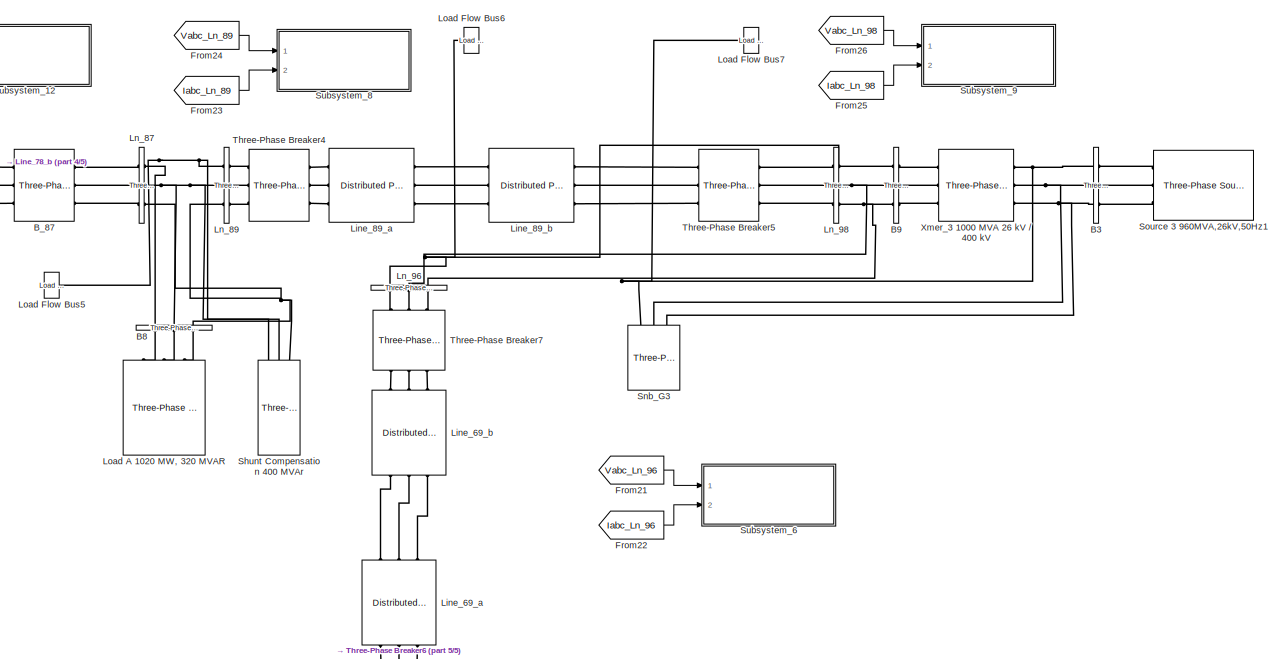
[diagram: root canvas - part 1/5, top right region]
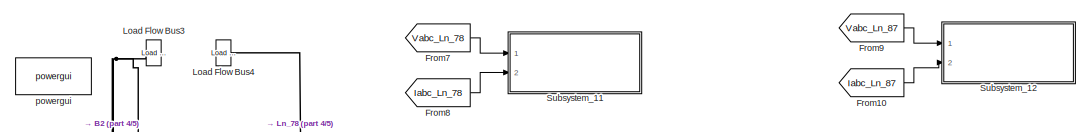
[diagram: root canvas - part 2/5, top center region]
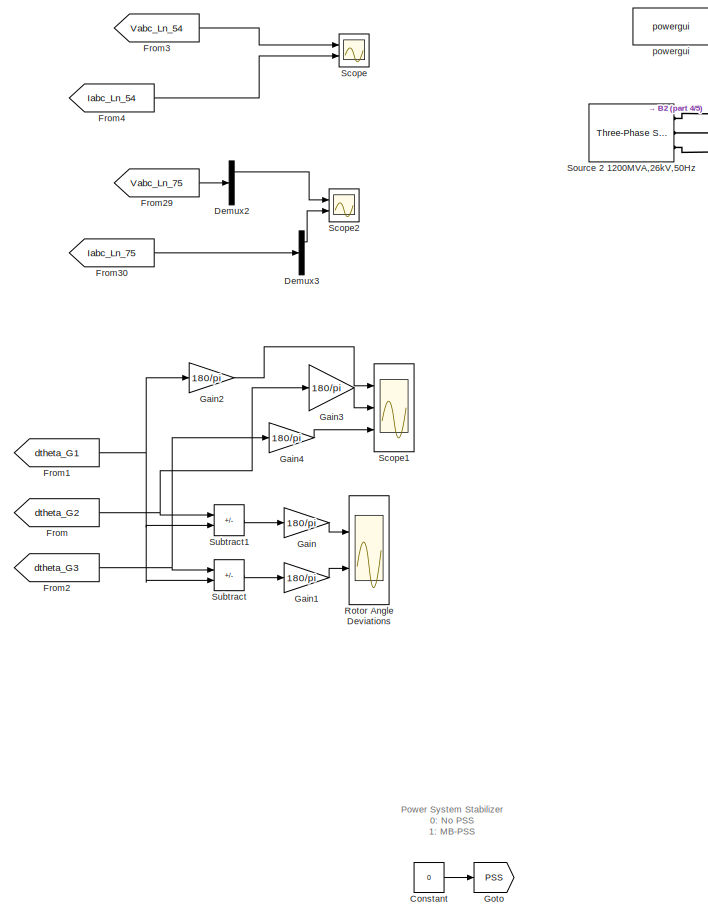
[diagram: root canvas - part 3/5, top left region]
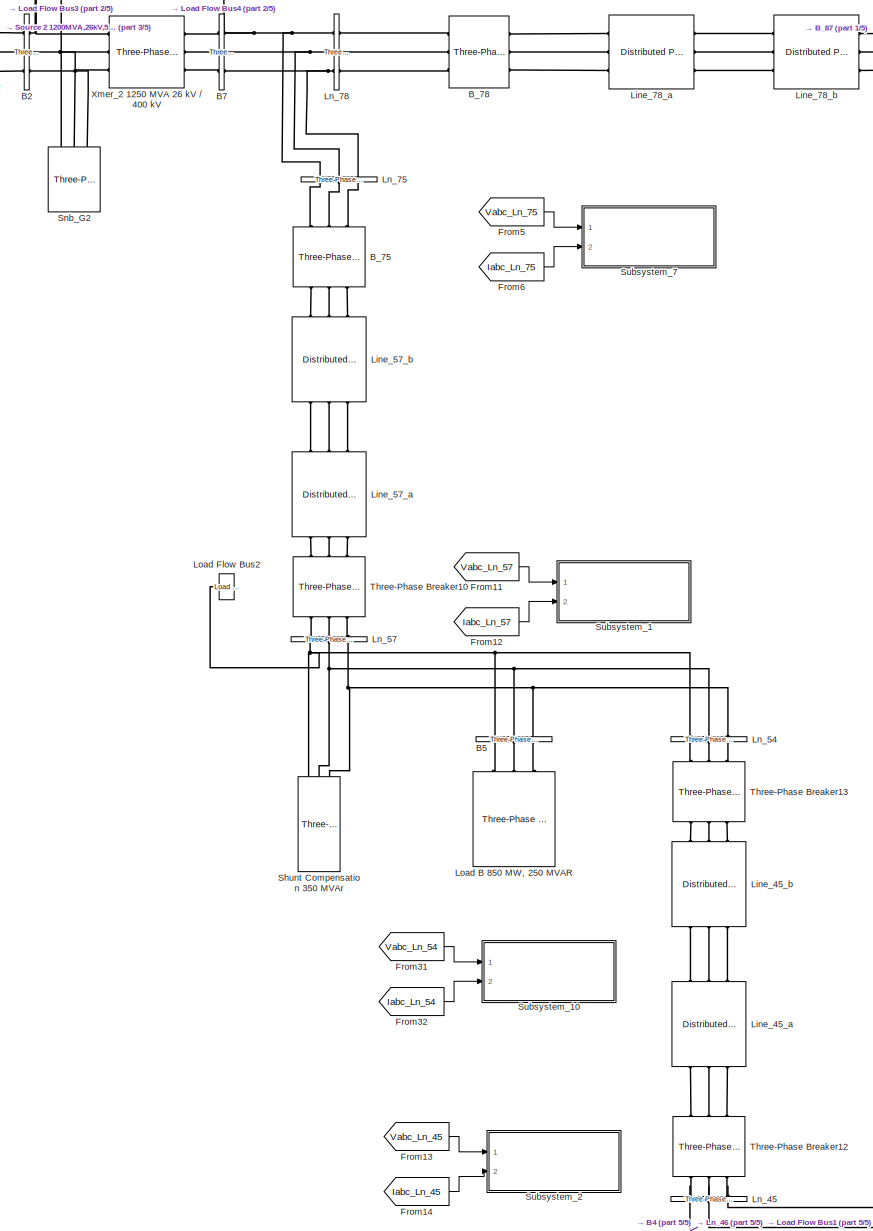
[diagram: root canvas - part 4/5, central region]
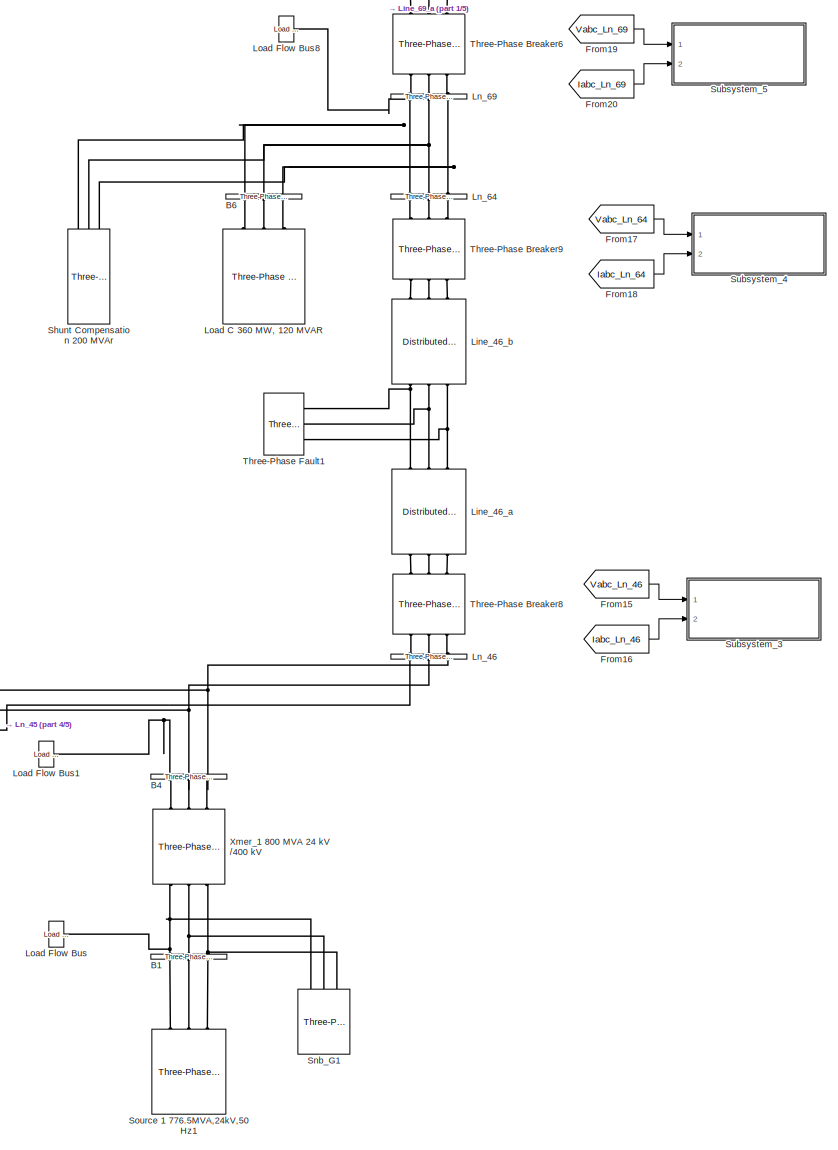
[diagram: root canvas - part 5/5, bottom right region]
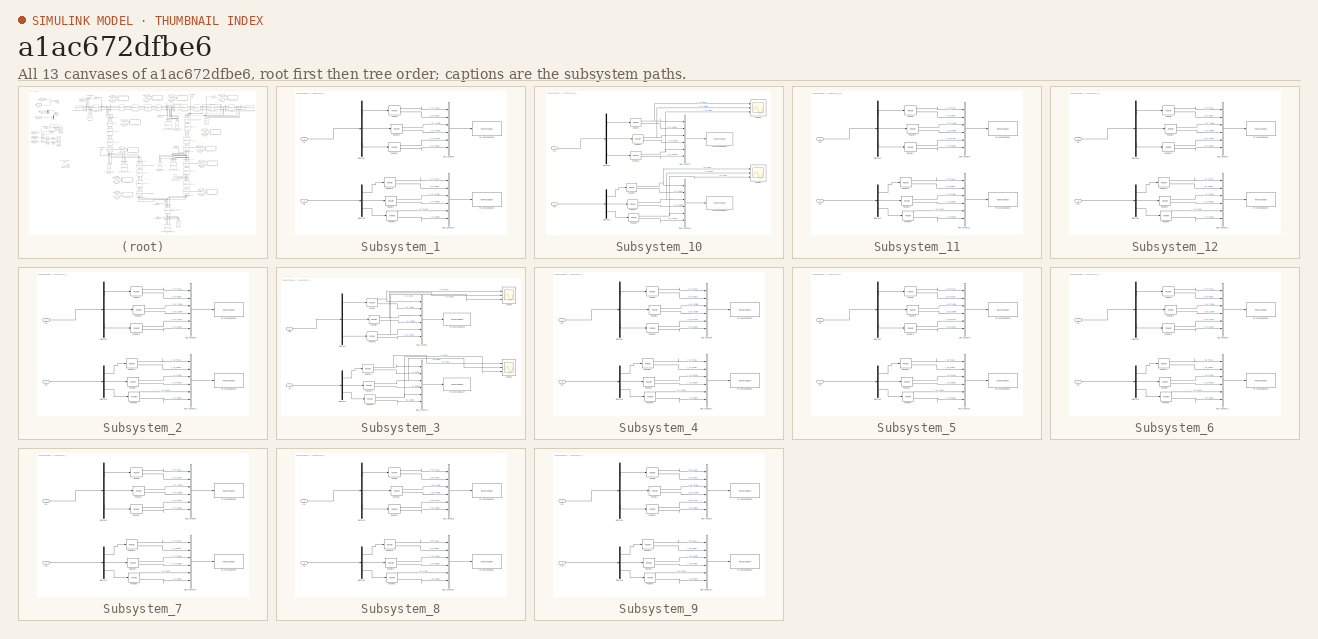
[diagram: thumbnail index - all 13 canvases of the model, root first then tree order]
MODEL slx_a1ac672dfbe6
KIND model
CONFIG AbsTol = auto
CONFIG EnableMultiTasking = off
CONFIG FixedStep = 5e-7
CONFIG MaxStep = auto
CONFIG MinStep = auto
CONFIG PreLoadFcn = tf=1e-3\nto=20e-3
CONFIG RelTol = 1e-3
CONFIG SampleTimeConstraint = Unconstrained
CONFIG SolverName = FixedStepDiscrete
CONFIG StartTime = 0.0
CONFIG StopTime = 1
WORKSPACE source: mxarray member
WORKSPACE tf = 0.001
WORKSPACE to = 0.02
BLOCK [Reference] B1  REF=spsThreePhaseVIMeasurementLib/Three-Phase
V-I Measurement
  NameLocation = right
  Ports = [0, 0, 0, 0, 0, 3, 3]
  SourceBlock = spsThreePhaseVIMeasurementLib/Three-Phase\nV-I Measurement
  SourceProductBaseCode = PS
  SourceType = Three-Phase VI Measurement
BLOCK [Reference] B2  REF=spsThreePhaseVIMeasurementLib/Three-Phase
V-I Measurement
  Ports = [0, 0, 0, 0, 0, 3, 3]
  SourceBlock = spsThreePhaseVIMeasurementLib/Three-Phase\nV-I Measurement
  SourceProductBaseCode = PS
  SourceType = Three-Phase VI Measurement
BLOCK [Reference] B3  REF=spsThreePhaseVIMeasurementLib/Three-Phase
V-I Measurement
  Ports = [0, 0, 0, 0, 0, 3, 3]
  SourceBlock = spsThreePhaseVIMeasurementLib/Three-Phase\nV-I Measurement
  SourceProductBaseCode = PS
  SourceType = Three-Phase VI Measurement
BLOCK [Reference] B4  REF=spsThreePhaseVIMeasurementLib/Three-Phase
V-I Measurement
  NameLocation = right
  Ports = [0, 0, 0, 0, 0, 3, 3]
  SourceBlock = spsThreePhaseVIMeasurementLib/Three-Phase\nV-I Measurement
  SourceProductBaseCode = PS
  SourceType = Three-Phase VI Measurement
BLOCK [Reference] B5  REF=spsThreePhaseVIMeasurementLib/Three-Phase
V-I Measurement
  NameLocation = left
  Ports = [0, 0, 0, 0, 0, 3, 3]
  SourceBlock = spsThreePhaseVIMeasurementLib/Three-Phase\nV-I Measurement
  SourceProductBaseCode = PS
  SourceType = Three-Phase VI Measurement
BLOCK [Reference] B6  REF=spsThreePhaseVIMeasurementLib/Three-Phase
V-I Measurement
  NameLocation = left
  Ports = [0, 0, 0, 0, 0, 3, 3]
  SourceBlock = spsThreePhaseVIMeasurementLib/Three-Phase\nV-I Measurement
  SourceProductBaseCode = PS
  SourceType = Three-Phase VI Measurement
BLOCK [Reference] B7  REF=spsThreePhaseVIMeasurementLib/Three-Phase
V-I Measurement
  Ports = [0, 0, 0, 0, 0, 3, 3]
  SourceBlock = spsThreePhaseVIMeasurementLib/Three-Phase\nV-I Measurement
  SourceProductBaseCode = PS
  SourceType = Three-Phase VI Measurement
BLOCK [Reference] B8  REF=spsThreePhaseVIMeasurementLib/Three-Phase
V-I Measurement
  NameLocation = left
  Ports = [0, 0, 0, 0, 0, 3, 3]
  SourceBlock = spsThreePhaseVIMeasurementLib/Three-Phase\nV-I Measurement
  SourceProductBaseCode = PS
  SourceType = Three-Phase VI Measurement
BLOCK [Reference] B9  REF=spsThreePhaseVIMeasurementLib/Three-Phase
V-I Measurement
  Ports = [0, 0, 0, 0, 0, 3, 3]
  SourceBlock = spsThreePhaseVIMeasurementLib/Three-Phase\nV-I Measurement
  SourceProductBaseCode = PS
  SourceType = Three-Phase VI Measurement
BLOCK [Reference] B_75  REF=spsThreePhaseBreakerLib/Three-Phase Breaker
  NameLocation = right
  Ports = [0, 0, 0, 0, 0, 3, 3]
  SourceBlock = spsThreePhaseBreakerLib/Three-Phase Breaker
  SourceProductBaseCode = PS
  SourceType = Three-Phase Breaker
BLOCK [Reference] B_78  REF=spsThreePhaseBreakerLib/Three-Phase Breaker
  Ports = [0, 0, 0, 0, 0, 3, 3]
  SourceBlock = spsThreePhaseBreakerLib/Three-Phase Breaker
  SourceProductBaseCode = PS
  SourceType = Three-Phase Breaker
BLOCK [Reference] B_87  REF=spsThreePhaseBreakerLib/Three-Phase Breaker
  Ports = [0, 0, 0, 0, 0, 3, 3]
  SourceBlock = spsThreePhaseBreakerLib/Three-Phase Breaker
  SourceProductBaseCode = PS
  SourceType = Three-Phase Breaker
BLOCK [Constant] Constant
  Value = 0
BLOCK [Demux] Demux2
  Outputs = 3
  Ports = [1, 3]
BLOCK [Demux] Demux3
  Outputs = 3
  Ports = [1, 3]
BLOCK [From] From
  Commented = on
  GotoTag = dtheta_G2
BLOCK [From] From1
  Commented = on
  GotoTag = dtheta_G1
BLOCK [From] From10
  GotoTag = Iabc_Ln_87
  TagVisibility = global
BLOCK [From] From11
  GotoTag = Vabc_Ln_57
  TagVisibility = global
BLOCK [From] From12
  GotoTag = Iabc_Ln_57
  TagVisibility = global
BLOCK [From] From13
  GotoTag = Vabc_Ln_45
  TagVisibility = global
BLOCK [From] From14
  GotoTag = Iabc_Ln_45
  TagVisibility = global
BLOCK [From] From15
  GotoTag = Vabc_Ln_46
  TagVisibility = global
BLOCK [From] From16
  GotoTag = Iabc_Ln_46
  TagVisibility = global
BLOCK [From] From17
  GotoTag = Vabc_Ln_64
  TagVisibility = global
BLOCK [From] From18
  GotoTag = Iabc_Ln_64
  TagVisibility = global
BLOCK [From] From19
  GotoTag = Vabc_Ln_69
  TagVisibility = global
BLOCK [From] From2
  Commented = on
  GotoTag = dtheta_G3
BLOCK [From] From20
  GotoTag = Iabc_Ln_69
  TagVisibility = global
BLOCK [From] From21
  GotoTag = Vabc_Ln_96
  TagVisibility = global
BLOCK [From] From22
  GotoTag = Iabc_Ln_96
  TagVisibility = global
BLOCK [From] From23
  GotoTag = Iabc_Ln_89
  TagVisibility = global
BLOCK [From] From24
  GotoTag = Vabc_Ln_89
  TagVisibility = global
BLOCK [From] From25
  GotoTag = Iabc_Ln_98
  TagVisibility = global
BLOCK [From] From26
  GotoTag = Vabc_Ln_98
  TagVisibility = global
BLOCK [From] From29
  GotoTag = Vabc_Ln_75
  TagVisibility = global
BLOCK [From] From3
  GotoTag = Vabc_Ln_54
  TagVisibility = global
BLOCK [From] From30
  GotoTag = Iabc_Ln_75
  TagVisibility = global
BLOCK [From] From31
  GotoTag = Vabc_Ln_54
  TagVisibility = global
BLOCK [From] From32
  GotoTag = Iabc_Ln_54
  TagVisibility = global
BLOCK [From] From4
  GotoTag = Iabc_Ln_54
  TagVisibility = global
BLOCK [From] From5
  GotoTag = Vabc_Ln_75
  TagVisibility = global
BLOCK [From] From6
  GotoTag = Iabc_Ln_75
  TagVisibility = global
BLOCK [From] From7
  GotoTag = Vabc_Ln_78
  TagVisibility = global
BLOCK [From] From8
  GotoTag = Iabc_Ln_78
  TagVisibility = global
BLOCK [From] From9
  GotoTag = Vabc_Ln_87
  TagVisibility = global
BLOCK [Gain] Gain
  Commented = on
  Gain = 180/pi
BLOCK [Gain] Gain1
  Commented = on
  Gain = 180/pi
BLOCK [Gain] Gain2
  Commented = on
  Gain = 180/pi
BLOCK [Gain] Gain3
  Commented = on
  Gain = 180/pi
BLOCK [Gain] Gain4
  Commented = on
  Gain = 180/pi
BLOCK [Goto] Goto
  GotoTag = PSS
  TagVisibility = global
BLOCK [Reference] Line_45_a  REF=spsDistributedParametersLineLib/Distributed Parameters Line
  NameLocation = right
  Ports = [0, 0, 0, 0, 0, 3, 3]
  SourceBlock = spsDistributedParametersLineLib/Distributed Parameters Line
  SourceProductBaseCode = PS
  SourceType = Distributed Parameters Line
BLOCK [Reference] Line_45_b  REF=spsDistributedParametersLineLib/Distributed Parameters Line
  NameLocation = right
  Ports = [0, 0, 0, 0, 0, 3, 3]
  SourceBlock = spsDistributedParametersLineLib/Distributed Parameters Line
  SourceProductBaseCode = PS
  SourceType = Distributed Parameters Line
BLOCK [Reference] Line_46_a  REF=spsDistributedParametersLineLib/Distributed Parameters Line
  NameLocation = right
  Ports = [0, 0, 0, 0, 0, 3, 3]
  SourceBlock = spsDistributedParametersLineLib/Distributed Parameters Line
  SourceProductBaseCode = PS
  SourceType = Distributed Parameters Line
BLOCK [Reference] Line_46_b  REF=spsDistributedParametersLineLib/Distributed Parameters Line
  NameLocation = right
  Ports = [0, 0, 0, 0, 0, 3, 3]
  SourceBlock = spsDistributedParametersLineLib/Distributed Parameters Line
  SourceProductBaseCode = PS
  SourceType = Distributed Parameters Line
BLOCK [Reference] Line_57_a  REF=spsDistributedParametersLineLib/Distributed Parameters Line
  NameLocation = right
  Ports = [0, 0, 0, 0, 0, 3, 3]
  SourceBlock = spsDistributedParametersLineLib/Distributed Parameters Line
  SourceProductBaseCode = PS
  SourceType = Distributed Parameters Line
BLOCK [Reference] Line_57_b  REF=spsDistributedParametersLineLib/Distributed Parameters Line
  NameLocation = right
  Ports = [0, 0, 0, 0, 0, 3, 3]
  SourceBlock = spsDistributedParametersLineLib/Distributed Parameters Line
  SourceProductBaseCode = PS
  SourceType = Distributed Parameters Line
BLOCK [Reference] Line_69_a  REF=spsDistributedParametersLineLib/Distributed Parameters Line
  NameLocation = right
  Ports = [0, 0, 0, 0, 0, 3, 3]
  SourceBlock = spsDistributedParametersLineLib/Distributed Parameters Line
  SourceProductBaseCode = PS
  SourceType = Distributed Parameters Line
BLOCK [Reference] Line_69_b  REF=spsDistributedParametersLineLib/Distributed Parameters Line
  NameLocation = right
  Ports = [0, 0, 0, 0, 0, 3, 3]
  SourceBlock = spsDistributedParametersLineLib/Distributed Parameters Line
  SourceProductBaseCode = PS
  SourceType = Distributed Parameters Line
BLOCK [Reference] Line_78_a  REF=spsDistributedParametersLineLib/Distributed Parameters Line
  Ports = [0, 0, 0, 0, 0, 3, 3]
  SourceBlock = spsDistributedParametersLineLib/Distributed Parameters Line
  SourceProductBaseCode = PS
  SourceType = Distributed Parameters Line
BLOCK [Reference] Line_78_b  REF=spsDistributedParametersLineLib/Distributed Parameters Line
  Ports = [0, 0, 0, 0, 0, 3, 3]
  SourceBlock = spsDistributedParametersLineLib/Distributed Parameters Line
  SourceProductBaseCode = PS
  SourceType = Distributed Parameters Line
BLOCK [Reference] Line_89_a  REF=spsDistributedParametersLineLib/Distributed Parameters Line
  Ports = [0, 0, 0, 0, 0, 3, 3]
  SourceBlock = spsDistributedParametersLineLib/Distributed Parameters Line
  SourceProductBaseCode = PS
  SourceType = Distributed Parameters Line
BLOCK [Reference] Line_89_b  REF=spsDistributedParametersLineLib/Distributed Parameters Line
  Ports = [0, 0, 0, 0, 0, 3, 3]
  SourceBlock = spsDistributedParametersLineLib/Distributed Parameters Line
  SourceProductBaseCode = PS
  SourceType = Distributed Parameters Line
BLOCK [Reference] Ln_45  REF=spsThreePhaseVIMeasurementLib/Three-Phase
V-I Measurement
  NameLocation = right
  Ports = [0, 0, 0, 0, 0, 3, 3]
  SourceBlock = spsThreePhaseVIMeasurementLib/Three-Phase\nV-I Measurement
  SourceProductBaseCode = PS
  SourceType = Three-Phase VI Measurement
BLOCK [Reference] Ln_46  REF=spsThreePhaseVIMeasurementLib/Three-Phase
V-I Measurement
  NameLocation = right
  Ports = [0, 0, 0, 0, 0, 3, 3]
  SourceBlock = spsThreePhaseVIMeasurementLib/Three-Phase\nV-I Measurement
  SourceProductBaseCode = PS
  SourceType = Three-Phase VI Measurement
BLOCK [Reference] Ln_54  REF=spsThreePhaseVIMeasurementLib/Three-Phase
V-I Measurement
  NameLocation = right
  Ports = [0, 0, 0, 0, 0, 3, 3]
  SourceBlock = spsThreePhaseVIMeasurementLib/Three-Phase\nV-I Measurement
  SourceProductBaseCode = PS
  SourceType = Three-Phase VI Measurement
BLOCK [Reference] Ln_57  REF=spsThreePhaseVIMeasurementLib/Three-Phase
V-I Measurement
  NameLocation = right
  Ports = [0, 0, 0, 0, 0, 3, 3]
  SourceBlock = spsThreePhaseVIMeasurementLib/Three-Phase\nV-I Measurement
  SourceProductBaseCode = PS
  SourceType = Three-Phase VI Measurement
BLOCK [Reference] Ln_64  REF=spsThreePhaseVIMeasurementLib/Three-Phase
V-I Measurement
  NameLocation = right
  Ports = [0, 0, 0, 0, 0, 3, 3]
  SourceBlock = spsThreePhaseVIMeasurementLib/Three-Phase\nV-I Measurement
  SourceProductBaseCode = PS
  SourceType = Three-Phase VI Measurement
BLOCK [Reference] Ln_69  REF=spsThreePhaseVIMeasurementLib/Three-Phase
V-I Measurement
  NameLocation = right
  Ports = [0, 0, 0, 0, 0, 3, 3]
  SourceBlock = spsThreePhaseVIMeasurementLib/Three-Phase\nV-I Measurement
  SourceProductBaseCode = PS
  SourceType = Three-Phase VI Measurement
BLOCK [Reference] Ln_75  REF=spsThreePhaseVIMeasurementLib/Three-Phase
V-I Measurement
  NameLocation = right
  Ports = [0, 0, 0, 0, 0, 3, 3]
  SourceBlock = spsThreePhaseVIMeasurementLib/Three-Phase\nV-I Measurement
  SourceProductBaseCode = PS
  SourceType = Three-Phase VI Measurement
BLOCK [Reference] Ln_78  REF=spsThreePhaseVIMeasurementLib/Three-Phase
V-I Measurement
  Ports = [0, 0, 0, 0, 0, 3, 3]
  SourceBlock = spsThreePhaseVIMeasurementLib/Three-Phase\nV-I Measurement
  SourceProductBaseCode = PS
  SourceType = Three-Phase VI Measurement
BLOCK [Reference] Ln_87  REF=spsThreePhaseVIMeasurementLib/Three-Phase
V-I Measurement
  Ports = [0, 0, 0, 0, 0, 3, 3]
  SourceBlock = spsThreePhaseVIMeasurementLib/Three-Phase\nV-I Measurement
  SourceProductBaseCode = PS
  SourceType = Three-Phase VI Measurement
BLOCK [Reference] Ln_89  REF=spsThreePhaseVIMeasurementLib/Three-Phase
V-I Measurement
  Ports = [0, 0, 0, 0, 0, 3, 3]
  SourceBlock = spsThreePhaseVIMeasurementLib/Three-Phase\nV-I Measurement
  SourceProductBaseCode = PS
  SourceType = Three-Phase VI Measurement
BLOCK [Reference] Ln_96  REF=spsThreePhaseVIMeasurementLib/Three-Phase
V-I Measurement
  NameLocation = right
  Ports = [0, 0, 0, 0, 0, 3, 3]
  SourceBlock = spsThreePhaseVIMeasurementLib/Three-Phase\nV-I Measurement
  SourceProductBaseCode = PS
  SourceType = Three-Phase VI Measurement
BLOCK [Reference] Ln_98  REF=spsThreePhaseVIMeasurementLib/Three-Phase
V-I Measurement
  Ports = [0, 0, 0, 0, 0, 3, 3]
  SourceBlock = spsThreePhaseVIMeasurementLib/Three-Phase\nV-I Measurement
  SourceProductBaseCode = PS
  SourceType = Three-Phase VI Measurement
BLOCK [Reference] Load A 1020 MW, 320 MVAR  REF=spsThreePhaseParallelRLCLoadLib/Three-Phase
Parallel RLC Load
  AttributesFormatString = \n
  NameLocation = right
  Ports = [0, 0, 0, 0, 0, 3]
  SourceBlock = spsThreePhaseParallelRLCLoadLib/Three-Phase\nParallel RLC Load
  SourceProductBaseCode = PS
  SourceType = Three-Phase Parallel RLC Load
BLOCK [Reference] Load B 850 MW, 250 MVAR  REF=spsThreePhaseParallelRLCLoadLib/Three-Phase
Parallel RLC Load
  AttributesFormatString = \n
  NameLocation = right
  Ports = [0, 0, 0, 0, 0, 3]
  SourceBlock = spsThreePhaseParallelRLCLoadLib/Three-Phase\nParallel RLC Load
  SourceProductBaseCode = PS
  SourceType = Three-Phase Parallel RLC Load
BLOCK [Reference] Load C 360 MW, 120 MVAR  REF=spsThreePhaseParallelRLCLoadLib/Three-Phase
Parallel RLC Load
  AttributesFormatString = \n
  NameLocation = right
  Ports = [0, 0, 0, 0, 0, 3]
  SourceBlock = spsThreePhaseParallelRLCLoadLib/Three-Phase\nParallel RLC Load
  SourceProductBaseCode = PS
  SourceType = Three-Phase Parallel RLC Load
BLOCK [Reference] Load Flow Bus  REF=spsLoadFlowBusLib/Load Flow Bus
  AttributesFormatString = %<ID>\n%<Vbase>V\n%<VLF>pu\n%<angleLF>deg.
  Ports = [0, 0, 0, 0, 0, 1]
  SourceBlock = spsLoadFlowBusLib/Load Flow Bus
  SourceProductBaseCode = PS
  SourceType = Load Flow Bus
BLOCK [Reference] Load Flow Bus1  REF=spsLoadFlowBusLib/Load Flow Bus
  AttributesFormatString = %<ID>\n%<Vbase>V\n%<VLF>pu\n%<angleLF>deg.
  Ports = [0, 0, 0, 0, 0, 1]
  SourceBlock = spsLoadFlowBusLib/Load Flow Bus
  SourceProductBaseCode = PS
  SourceType = Load Flow Bus
BLOCK [Reference] Load Flow Bus2  REF=spsLoadFlowBusLib/Load Flow Bus
  AttributesFormatString = %<ID>\n%<Vbase>V\n%<VLF>pu\n%<angleLF>deg.
  Ports = [0, 0, 0, 0, 0, 1]
  SourceBlock = spsLoadFlowBusLib/Load Flow Bus
  SourceProductBaseCode = PS
  SourceType = Load Flow Bus
BLOCK [Reference] Load Flow Bus3  REF=spsLoadFlowBusLib/Load Flow Bus
  AttributesFormatString = %<ID>\n%<Vbase>V\n%<VLF>pu\n%<angleLF>deg.
  Ports = [0, 0, 0, 0, 0, 1]
  SourceBlock = spsLoadFlowBusLib/Load Flow Bus
  SourceProductBaseCode = PS
  SourceType = Load Flow Bus
BLOCK [Reference] Load Flow Bus4  REF=spsLoadFlowBusLib/Load Flow Bus
  AttributesFormatString = %<ID>\n%<Vbase>V\n%<VLF>pu\n%<angleLF>deg.
  Ports = [0, 0, 0, 0, 0, 1]
  SourceBlock = spsLoadFlowBusLib/Load Flow Bus
  SourceProductBaseCode = PS
  SourceType = Load Flow Bus
BLOCK [Reference] Load Flow Bus5  REF=spsLoadFlowBusLib/Load Flow Bus
  AttributesFormatString = %<ID>\n%<Vbase>V\n%<VLF>pu\n%<angleLF>deg.
  Ports = [0, 0, 0, 0, 0, 1]
  SourceBlock = spsLoadFlowBusLib/Load Flow Bus
  SourceProductBaseCode = PS
  SourceType = Load Flow Bus
BLOCK [Reference] Load Flow Bus6  REF=spsLoadFlowBusLib/Load Flow Bus
  AttributesFormatString = %<ID>\n%<Vbase>V\n%<VLF>pu\n%<angleLF>deg.
  Ports = [0, 0, 0, 0, 0, 1]
  SourceBlock = spsLoadFlowBusLib/Load Flow Bus
  SourceProductBaseCode = PS
  SourceType = Load Flow Bus
BLOCK [Reference] Load Flow Bus7  REF=spsLoadFlowBusLib/Load Flow Bus
  AttributesFormatString = %<ID>\n%<Vbase>V\n%<VLF>pu\n%<angleLF>deg.
  Ports = [0, 0, 0, 0, 0, 1]
  SourceBlock = spsLoadFlowBusLib/Load Flow Bus
  SourceProductBaseCode = PS
  SourceType = Load Flow Bus
BLOCK [Reference] Load Flow Bus8  REF=spsLoadFlowBusLib/Load Flow Bus
  AttributesFormatString = %<ID>\n%<Vbase>V\n%<VLF>pu\n%<angleLF>deg.
  Ports = [0, 0, 0, 0, 0, 1]
  SourceBlock = spsLoadFlowBusLib/Load Flow Bus
  SourceProductBaseCode = PS
  SourceType = Load Flow Bus
BLOCK [Scope] Rotor Angle Deviations
  Commented = on
  Floating = off
  NumInputPorts = 2
  Ports = [2]
  ScopeSpecificationString = Simulink.scopes.TimeScopeBlockCfg('CurrentConfiguration', extmgr.ConfigurationSet(extmgr.Configuration('Core','General UI',true),extmgr.Configuration('Core','Source UI',true),extmgr.Configuration('Sources','WiredSimulink',true,'DataLoggingVariableName','ScopeData3'),extmgr.Configuration('Visuals','Time Domain',true,'SerializedDisplays',{struct('MinYLimReal','1.14352','MaxYLimReal','62.70323','YLab...<+2066ch>
BLOCK [Scope] Scope
  Floating = off
  NumInputPorts = 2
  Ports = [2]
  ScopeSpecificationString = Simulink.scopes.TimeScopeBlockCfg('CurrentConfiguration', extmgr.ConfigurationSet(extmgr.Configuration('Core','General UI',true,'FigureColor',[0.8 0.8 0.8]),extmgr.Configuration('Core','Source UI',true),extmgr.Configuration('Sources','WiredSimulink',true,'DataLoggingVariableName','ScopeData1'),extmgr.Configuration('Visuals','Time Domain',true,'SerializedDisplays',{struct('MinYLimReal','-457265.540...<+2688ch>
BLOCK [Scope] Scope1
  Commented = on
  Floating = off
  NumInputPorts = 3
  Ports = [3]
  ScopeSpecificationString = Simulink.scopes.TimeScopeBlockCfg('CurrentConfiguration', extmgr.ConfigurationSet(extmgr.Configuration('Core','General UI',true),extmgr.Configuration('Core','Source UI',true),extmgr.Configuration('Sources','WiredSimulink',true,'DataLoggingVariableName','ScopeData1'),extmgr.Configuration('Visuals','Time Domain',true,'SerializedDisplays',{struct('MinYLimReal','-37.5558','MaxYLimReal','75.03479','YLa...<+2768ch>
BLOCK [Scope] Scope2
  Floating = off
  NumInputPorts = 2
  Ports = [2]
  ScopeSpecificationString = Simulink.scopes.TimeScopeBlockCfg('CurrentConfiguration', extmgr.ConfigurationSet(extmgr.Configuration('Core','General UI',true,'FigureColor',[0.8 0.8 0.8]),extmgr.Configuration('Core','Source UI',true),extmgr.Configuration('Sources','WiredSimulink',true,'DataLoggingVariableName','ScopeData1'),extmgr.Configuration('Visuals','Time Domain',true,'SerializedDisplays',{struct('MinYLimReal','-418602.991...<+2300ch>
BLOCK [Reference] Shunt Compensation 200 MVAr  REF=spsThreePhaseParallelRLCLoadLib/Three-Phase
Parallel RLC Load
  AttributesFormatString = \n
  NameLocation = right
  Ports = [0, 0, 0, 0, 0, 3]
  SourceBlock = spsThreePhaseParallelRLCLoadLib/Three-Phase\nParallel RLC Load
  SourceProductBaseCode = PS
  SourceType = Three-Phase Parallel RLC Load
BLOCK [Reference] Shunt Compensation 350 MVAr  REF=spsThreePhaseParallelRLCLoadLib/Three-Phase
Parallel RLC Load
  AttributesFormatString = \n
  NameLocation = right
  Ports = [0, 0, 0, 0, 0, 3]
  SourceBlock = spsThreePhaseParallelRLCLoadLib/Three-Phase\nParallel RLC Load
  SourceProductBaseCode = PS
  SourceType = Three-Phase Parallel RLC Load
BLOCK [Reference] Shunt Compensation 400 MVAr  REF=spsThreePhaseParallelRLCLoadLib/Three-Phase
Parallel RLC Load
  AttributesFormatString = \n
  NameLocation = right
  Ports = [0, 0, 0, 0, 0, 3]
  SourceBlock = spsThreePhaseParallelRLCLoadLib/Three-Phase\nParallel RLC Load
  SourceProductBaseCode = PS
  SourceType = Three-Phase Parallel RLC Load
BLOCK [Reference] Snb_G1  REF=spsThreePhaseSeriesRLCLoadLib/Three-Phase
Series RLC Load
  AttributesFormatString = \n
  NameLocation = right
  Ports = [0, 0, 0, 0, 0, 3]
  SourceBlock = spsThreePhaseSeriesRLCLoadLib/Three-Phase\nSeries RLC Load
  SourceProductBaseCode = PS
  SourceType = Three-Phase Series RLC Load
BLOCK [Reference] Snb_G2  REF=spsThreePhaseSeriesRLCLoadLib/Three-Phase
Series RLC Load
  AttributesFormatString = \n
  NameLocation = right
  Ports = [0, 0, 0, 0, 0, 3]
  SourceBlock = spsThreePhaseSeriesRLCLoadLib/Three-Phase\nSeries RLC Load
  SourceProductBaseCode = PS
  SourceType = Three-Phase Series RLC Load
BLOCK [Reference] Snb_G3  REF=spsThreePhaseSeriesRLCLoadLib/Three-Phase
Series RLC Load
  AttributesFormatString = \n
  NameLocation = right
  Ports = [0, 0, 0, 0, 0, 3]
  SourceBlock = spsThreePhaseSeriesRLCLoadLib/Three-Phase\nSeries RLC Load
  SourceProductBaseCode = PS
  SourceType = Three-Phase Series RLC Load
BLOCK [Reference] Source 1 776.5MVA,24kV,50Hz1  REF=spsThreePhaseSourceLib/Three-Phase Source
  NameLocation = left
  Ports = [0, 0, 0, 0, 0, 0, 3]
  SourceBlock = spsThreePhaseSourceLib/Three-Phase Source
  SourceProductBaseCode = PS
  SourceType = Three-Phase Source
BLOCK [Reference] Source 2 1200MVA,26kV,50Hz  REF=spsThreePhaseSourceLib/Three-Phase Source
  Ports = [0, 0, 0, 0, 0, 0, 3]
  SourceBlock = spsThreePhaseSourceLib/Three-Phase Source
  SourceProductBaseCode = PS
  SourceType = Three-Phase Source
BLOCK [Reference] Source 3 960MVA,26kV,50Hz1  REF=spsThreePhaseSourceLib/Three-Phase Source
  Ports = [0, 0, 0, 0, 0, 0, 3]
  SourceBlock = spsThreePhaseSourceLib/Three-Phase Source
  SourceProductBaseCode = PS
  SourceType = Three-Phase Source
BLOCK [SubSystem] Subsystem_1
  Ports = [2]
  RequestExecContextInheritance = off
BLOCK [BusCreator] Subsystem_1/Bus Creator
  DisplayOption = bar
  InheritFromInputs = on
  Inputs = 6
  Ports = [6, 1]
BLOCK [BusCreator] Subsystem_1/Bus Creator1
  DisplayOption = bar
  InheritFromInputs = on
  Inputs = 6
  Ports = [6, 1]
BLOCK [Demux] Subsystem_1/Demux2
  Outputs = 3
  Ports = [1, 3]
BLOCK [Demux] Subsystem_1/Demux3
  Outputs = 3
  Ports = [1, 3]
BLOCK [Reference] Subsystem_1/Fourier  REF=spsFourierLib/Fourier
  Ports = [1, 2]
  SourceBlock = spsFourierLib/Fourier
  SourceProductBaseCode = PS
  SourceType = Fourier
BLOCK [Reference] Subsystem_1/Fourier1  REF=spsFourierLib/Fourier
  Ports = [1, 2]
  SourceBlock = spsFourierLib/Fourier
  SourceProductBaseCode = PS
  SourceType = Fourier
BLOCK [Reference] Subsystem_1/Fourier2  REF=spsFourierLib/Fourier
  Ports = [1, 2]
  SourceBlock = spsFourierLib/Fourier
  SourceProductBaseCode = PS
  SourceType = Fourier
BLOCK [Reference] Subsystem_1/Fourier3  REF=spsFourierLib/Fourier
  Ports = [1, 2]
  SourceBlock = spsFourierLib/Fourier
  SourceProductBaseCode = PS
  SourceType = Fourier
BLOCK [Reference] Subsystem_1/Fourier4  REF=spsFourierLib/Fourier
  Ports = [1, 2]
  SourceBlock = spsFourierLib/Fourier
  SourceProductBaseCode = PS
  SourceType = Fourier
BLOCK [Reference] Subsystem_1/Fourier5  REF=spsFourierLib/Fourier
  Ports = [1, 2]
  SourceBlock = spsFourierLib/Fourier
  SourceProductBaseCode = PS
  SourceType = Fourier
BLOCK [Inport] Subsystem_1/In1
BLOCK [Inport] Subsystem_1/In2
  Port = 2
BLOCK [ToWorkspace] Subsystem_1/To Workspace13
  FixptAsFi = on
  MaxDataPoints = inf
  Ports = [1]
  SampleTime = to
  SaveFormat = Timeseries
  VariableName = V_57
BLOCK [ToWorkspace] Subsystem_1/To Workspace14
  FixptAsFi = on
  MaxDataPoints = inf
  Ports = [1]
  SampleTime = to
  SaveFormat = Timeseries
  VariableName = I_57
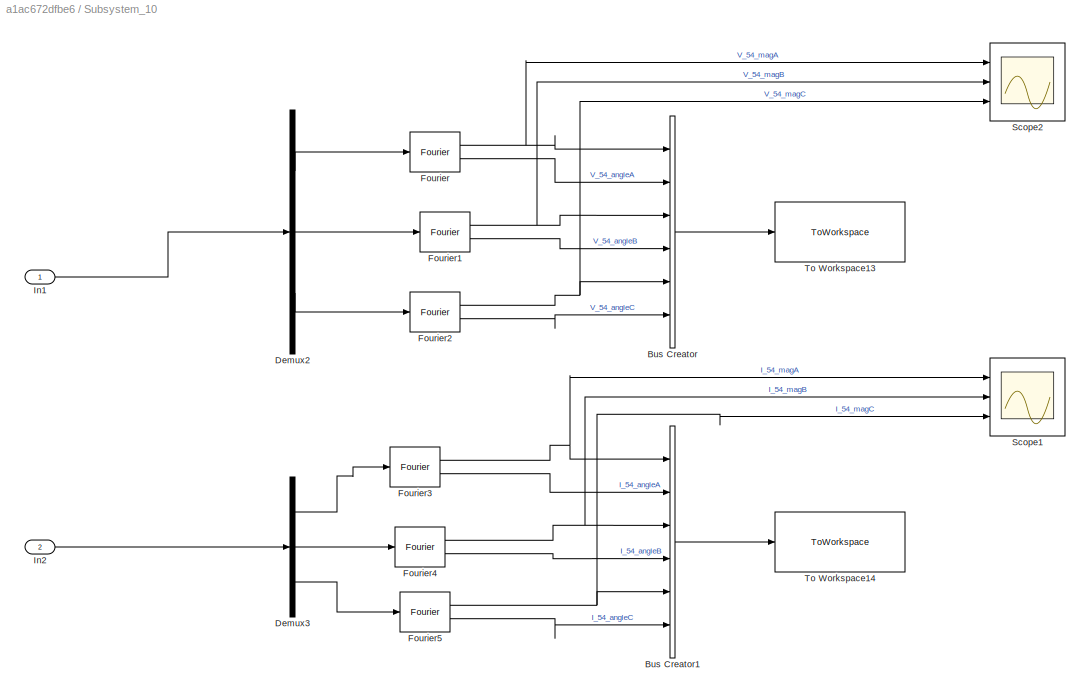
BLOCK [SubSystem] Subsystem_10
  Ports = [2]
  RequestExecContextInheritance = off
BLOCK [BusCreator] Subsystem_10/Bus Creator
  DisplayOption = bar
  InheritFromInputs = on
  Inputs = 6
  Ports = [6, 1]
BLOCK [BusCreator] Subsystem_10/Bus Creator1
  DisplayOption = bar
  InheritFromInputs = on
  Inputs = 6
  Ports = [6, 1]
BLOCK [Demux] Subsystem_10/Demux2
  Outputs = 3
  Ports = [1, 3]
BLOCK [Demux] Subsystem_10/Demux3
  Outputs = 3
  Ports = [1, 3]
BLOCK [Reference] Subsystem_10/Fourier  REF=spsFourierLib/Fourier
  Ports = [1, 2]
  SourceBlock = spsFourierLib/Fourier
  SourceProductBaseCode = PS
  SourceType = Fourier
BLOCK [Reference] Subsystem_10/Fourier1  REF=spsFourierLib/Fourier
  Ports = [1, 2]
  SourceBlock = spsFourierLib/Fourier
  SourceProductBaseCode = PS
  SourceType = Fourier
BLOCK [Reference] Subsystem_10/Fourier2  REF=spsFourierLib/Fourier
  Ports = [1, 2]
  SourceBlock = spsFourierLib/Fourier
  SourceProductBaseCode = PS
  SourceType = Fourier
BLOCK [Reference] Subsystem_10/Fourier3  REF=spsFourierLib/Fourier
  Ports = [1, 2]
  SourceBlock = spsFourierLib/Fourier
  SourceProductBaseCode = PS
  SourceType = Fourier
BLOCK [Reference] Subsystem_10/Fourier4  REF=spsFourierLib/Fourier
  Ports = [1, 2]
  SourceBlock = spsFourierLib/Fourier
  SourceProductBaseCode = PS
  SourceType = Fourier
BLOCK [Reference] Subsystem_10/Fourier5  REF=spsFourierLib/Fourier
  Ports = [1, 2]
  SourceBlock = spsFourierLib/Fourier
  SourceProductBaseCode = PS
  SourceType = Fourier
BLOCK [Inport] Subsystem_10/In1
BLOCK [Inport] Subsystem_10/In2
  Port = 2
BLOCK [Scope] Subsystem_10/Scope1
  Floating = off
  NumInputPorts = 3
  Ports = [3]
  ScopeSpecificationString = Simulink.scopes.TimeScopeBlockCfg('CurrentConfiguration', extmgr.ConfigurationSet(extmgr.Configuration('Core','General UI',true,'FigureColor',[1 1 1]),extmgr.Configuration('Core','Source UI',true),extmgr.Configuration('Sources','WiredSimulink',true,'DataLoggingVariableName','ScopeData4'),extmgr.Configuration('Visuals','Time Domain',true,'SerializedDisplays',{struct('MinYLimReal','-183.2879','MaxYL...<+1886ch>
BLOCK [Scope] Subsystem_10/Scope2
  Floating = off
  NumInputPorts = 3
  Ports = [3]
  ScopeSpecificationString = Simulink.scopes.TimeScopeBlockCfg('CurrentConfiguration', extmgr.ConfigurationSet(extmgr.Configuration('Core','General UI',true,'FigureColor',[1 1 1]),extmgr.Configuration('Core','Source UI',true),extmgr.Configuration('Sources','WiredSimulink',true,'DataLoggingVariableName','ScopeData5'),extmgr.Configuration('Visuals','Time Domain',true,'SerializedDisplays',{struct('MinYLimReal','-42892.68959','Ma...<+1904ch>
BLOCK [ToWorkspace] Subsystem_10/To Workspace13
  FixptAsFi = on
  MaxDataPoints = inf
  Ports = [1]
  SampleTime = to
  SaveFormat = Timeseries
  VariableName = V_54
BLOCK [ToWorkspace] Subsystem_10/To Workspace14
  FixptAsFi = on
  MaxDataPoints = inf
  Ports = [1]
  SampleTime = to
  SaveFormat = Timeseries
  VariableName = I_54
BLOCK [SubSystem] Subsystem_11
  Ports = [2]
  RequestExecContextInheritance = off
BLOCK [BusCreator] Subsystem_11/Bus Creator
  DisplayOption = bar
  InheritFromInputs = on
  Inputs = 6
  Ports = [6, 1]
BLOCK [BusCreator] Subsystem_11/Bus Creator1
  DisplayOption = bar
  InheritFromInputs = on
  Inputs = 6
  Ports = [6, 1]
BLOCK [Demux] Subsystem_11/Demux2
  Outputs = 3
  Ports = [1, 3]
BLOCK [Demux] Subsystem_11/Demux3
  Outputs = 3
  Ports = [1, 3]
BLOCK [Reference] Subsystem_11/Fourier  REF=spsFourierLib/Fourier
  Ports = [1, 2]
  SourceBlock = spsFourierLib/Fourier
  SourceProductBaseCode = PS
  SourceType = Fourier
BLOCK [Reference] Subsystem_11/Fourier1  REF=spsFourierLib/Fourier
  Ports = [1, 2]
  SourceBlock = spsFourierLib/Fourier
  SourceProductBaseCode = PS
  SourceType = Fourier
BLOCK [Reference] Subsystem_11/Fourier2  REF=spsFourierLib/Fourier
  Ports = [1, 2]
  SourceBlock = spsFourierLib/Fourier
  SourceProductBaseCode = PS
  SourceType = Fourier
BLOCK [Reference] Subsystem_11/Fourier3  REF=spsFourierLib/Fourier
  Ports = [1, 2]
  SourceBlock = spsFourierLib/Fourier
  SourceProductBaseCode = PS
  SourceType = Fourier
BLOCK [Reference] Subsystem_11/Fourier4  REF=spsFourierLib/Fourier
  Ports = [1, 2]
  SourceBlock = spsFourierLib/Fourier
  SourceProductBaseCode = PS
  SourceType = Fourier
BLOCK [Reference] Subsystem_11/Fourier5  REF=spsFourierLib/Fourier
  Ports = [1, 2]
  SourceBlock = spsFourierLib/Fourier
  SourceProductBaseCode = PS
  SourceType = Fourier
BLOCK [Inport] Subsystem_11/In1
BLOCK [Inport] Subsystem_11/In2
  Port = 2
BLOCK [ToWorkspace] Subsystem_11/To Workspace13
  FixptAsFi = on
  MaxDataPoints = inf
  Ports = [1]
  SampleTime = to
  SaveFormat = Timeseries
  VariableName = V_78
BLOCK [ToWorkspace] Subsystem_11/To Workspace14
  FixptAsFi = on
  MaxDataPoints = inf
  Ports = [1]
  SampleTime = to
  SaveFormat = Timeseries
  VariableName = I_78
BLOCK [SubSystem] Subsystem_12
  Ports = [2]
  RequestExecContextInheritance = off
BLOCK [BusCreator] Subsystem_12/Bus Creator
  DisplayOption = bar
  InheritFromInputs = on
  Inputs = 6
  Ports = [6, 1]
BLOCK [BusCreator] Subsystem_12/Bus Creator1
  DisplayOption = bar
  InheritFromInputs = on
  Inputs = 6
  Ports = [6, 1]
BLOCK [Demux] Subsystem_12/Demux2
  Outputs = 3
  Ports = [1, 3]
BLOCK [Demux] Subsystem_12/Demux3
  Outputs = 3
  Ports = [1, 3]
BLOCK [Reference] Subsystem_12/Fourier  REF=spsFourierLib/Fourier
  Ports = [1, 2]
  SourceBlock = spsFourierLib/Fourier
  SourceProductBaseCode = PS
  SourceType = Fourier
BLOCK [Reference] Subsystem_12/Fourier1  REF=spsFourierLib/Fourier
  Ports = [1, 2]
  SourceBlock = spsFourierLib/Fourier
  SourceProductBaseCode = PS
  SourceType = Fourier
BLOCK [Reference] Subsystem_12/Fourier2  REF=spsFourierLib/Fourier
  Ports = [1, 2]
  SourceBlock = spsFourierLib/Fourier
  SourceProductBaseCode = PS
  SourceType = Fourier
BLOCK [Reference] Subsystem_12/Fourier3  REF=spsFourierLib/Fourier
  Ports = [1, 2]
  SourceBlock = spsFourierLib/Fourier
  SourceProductBaseCode = PS
  SourceType = Fourier
BLOCK [Reference] Subsystem_12/Fourier4  REF=spsFourierLib/Fourier
  Ports = [1, 2]
  SourceBlock = spsFourierLib/Fourier
  SourceProductBaseCode = PS
  SourceType = Fourier
BLOCK [Reference] Subsystem_12/Fourier5  REF=spsFourierLib/Fourier
  Ports = [1, 2]
  SourceBlock = spsFourierLib/Fourier
  SourceProductBaseCode = PS
  SourceType = Fourier
BLOCK [Inport] Subsystem_12/In1
BLOCK [Inport] Subsystem_12/In2
  Port = 2
BLOCK [ToWorkspace] Subsystem_12/To Workspace13
  FixptAsFi = on
  MaxDataPoints = inf
  Ports = [1]
  SampleTime = to
  SaveFormat = Timeseries
  VariableName = V_87
BLOCK [ToWorkspace] Subsystem_12/To Workspace14
  FixptAsFi = on
  MaxDataPoints = inf
  Ports = [1]
  SampleTime = to
  SaveFormat = Timeseries
  VariableName = I_87
BLOCK [SubSystem] Subsystem_2
  Ports = [2]
  RequestExecContextInheritance = off
BLOCK [BusCreator] Subsystem_2/Bus Creator
  DisplayOption = bar
  InheritFromInputs = on
  Inputs = 6
  Ports = [6, 1]
BLOCK [BusCreator] Subsystem_2/Bus Creator1
  DisplayOption = bar
  InheritFromInputs = on
  Inputs = 6
  Ports = [6, 1]
BLOCK [Demux] Subsystem_2/Demux2
  Outputs = 3
  Ports = [1, 3]
BLOCK [Demux] Subsystem_2/Demux3
  Outputs = 3
  Ports = [1, 3]
BLOCK [Reference] Subsystem_2/Fourier  REF=spsFourierLib/Fourier
  Ports = [1, 2]
  SourceBlock = spsFourierLib/Fourier
  SourceProductBaseCode = PS
  SourceType = Fourier
BLOCK [Reference] Subsystem_2/Fourier1  REF=spsFourierLib/Fourier
  Ports = [1, 2]
  SourceBlock = spsFourierLib/Fourier
  SourceProductBaseCode = PS
  SourceType = Fourier
BLOCK [Reference] Subsystem_2/Fourier2  REF=spsFourierLib/Fourier
  Ports = [1, 2]
  SourceBlock = spsFourierLib/Fourier
  SourceProductBaseCode = PS
  SourceType = Fourier
BLOCK [Reference] Subsystem_2/Fourier3  REF=spsFourierLib/Fourier
  Ports = [1, 2]
  SourceBlock = spsFourierLib/Fourier
  SourceProductBaseCode = PS
  SourceType = Fourier
BLOCK [Reference] Subsystem_2/Fourier4  REF=spsFourierLib/Fourier
  Ports = [1, 2]
  SourceBlock = spsFourierLib/Fourier
  SourceProductBaseCode = PS
  SourceType = Fourier
BLOCK [Reference] Subsystem_2/Fourier5  REF=spsFourierLib/Fourier
  Ports = [1, 2]
  SourceBlock = spsFourierLib/Fourier
  SourceProductBaseCode = PS
  SourceType = Fourier
BLOCK [Inport] Subsystem_2/In1
BLOCK [Inport] Subsystem_2/In2
  Port = 2
BLOCK [ToWorkspace] Subsystem_2/To Workspace13
  FixptAsFi = on
  MaxDataPoints = inf
  Ports = [1]
  SampleTime = to
  SaveFormat = Timeseries
  VariableName = V_45
BLOCK [ToWorkspace] Subsystem_2/To Workspace14
  FixptAsFi = on
  MaxDataPoints = inf
  Ports = [1]
  SampleTime = to
  SaveFormat = Timeseries
  VariableName = I_45
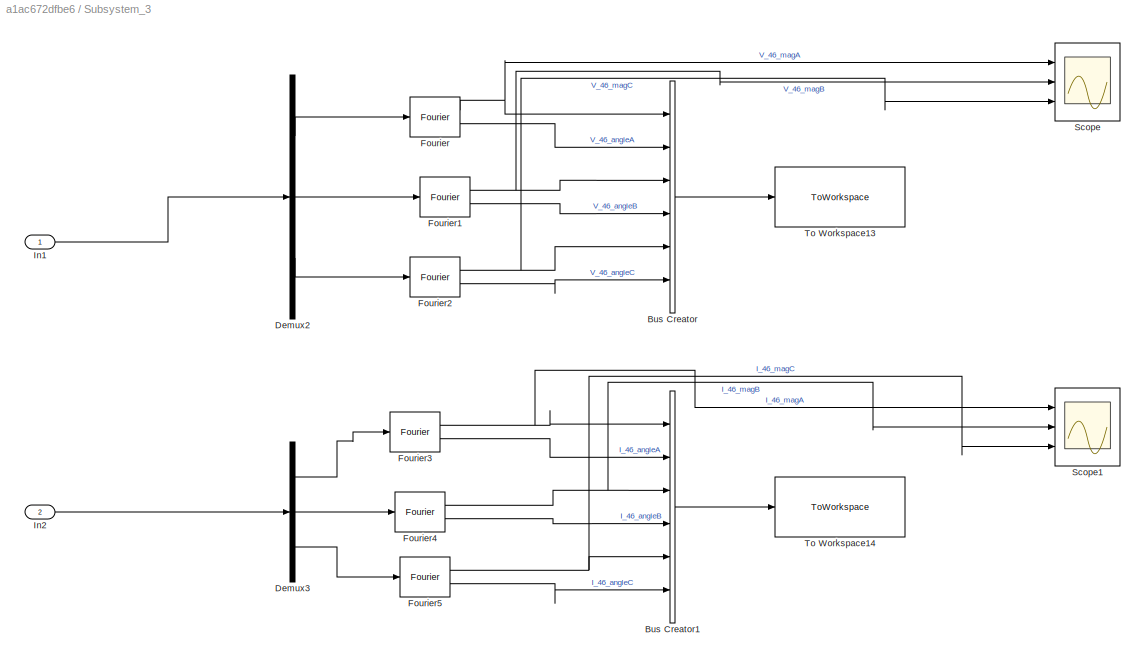
BLOCK [SubSystem] Subsystem_3
  Ports = [2]
  RequestExecContextInheritance = off
BLOCK [BusCreator] Subsystem_3/Bus Creator
  DisplayOption = bar
  InheritFromInputs = on
  Inputs = 6
  Ports = [6, 1]
BLOCK [BusCreator] Subsystem_3/Bus Creator1
  DisplayOption = bar
  InheritFromInputs = on
  Inputs = 6
  Ports = [6, 1]
BLOCK [Demux] Subsystem_3/Demux2
  Outputs = 3
  Ports = [1, 3]
BLOCK [Demux] Subsystem_3/Demux3
  Outputs = 3
  Ports = [1, 3]
BLOCK [Reference] Subsystem_3/Fourier  REF=spsFourierLib/Fourier
  Ports = [1, 2]
  SourceBlock = spsFourierLib/Fourier
  SourceProductBaseCode = PS
  SourceType = Fourier
BLOCK [Reference] Subsystem_3/Fourier1  REF=spsFourierLib/Fourier
  Ports = [1, 2]
  SourceBlock = spsFourierLib/Fourier
  SourceProductBaseCode = PS
  SourceType = Fourier
BLOCK [Reference] Subsystem_3/Fourier2  REF=spsFourierLib/Fourier
  Ports = [1, 2]
  SourceBlock = spsFourierLib/Fourier
  SourceProductBaseCode = PS
  SourceType = Fourier
BLOCK [Reference] Subsystem_3/Fourier3  REF=spsFourierLib/Fourier
  Ports = [1, 2]
  SourceBlock = spsFourierLib/Fourier
  SourceProductBaseCode = PS
  SourceType = Fourier
BLOCK [Reference] Subsystem_3/Fourier4  REF=spsFourierLib/Fourier
  Ports = [1, 2]
  SourceBlock = spsFourierLib/Fourier
  SourceProductBaseCode = PS
  SourceType = Fourier
BLOCK [Reference] Subsystem_3/Fourier5  REF=spsFourierLib/Fourier
  Ports = [1, 2]
  SourceBlock = spsFourierLib/Fourier
  SourceProductBaseCode = PS
  SourceType = Fourier
BLOCK [Inport] Subsystem_3/In1
BLOCK [Inport] Subsystem_3/In2
  Port = 2
BLOCK [Scope] Subsystem_3/Scope
  Floating = off
  NumInputPorts = 3
  Ports = [3]
  ScopeSpecificationString = Simulink.scopes.TimeScopeBlockCfg('CurrentConfiguration', extmgr.ConfigurationSet(extmgr.Configuration('Core','General UI',true,'FigureColor',[1 1 1]),extmgr.Configuration('Core','Source UI',true),extmgr.Configuration('Sources','WiredSimulink',true,'DataLoggingVariableName','ScopeData1'),extmgr.Configuration('Visuals','Time Domain',true,'SerializedDisplays',{struct('MinYLimReal','-42396.87281','Ma...<+1904ch>
BLOCK [Scope] Subsystem_3/Scope1
  Floating = off
  NumInputPorts = 3
  Ports = [3]
  ScopeSpecificationString = Simulink.scopes.TimeScopeBlockCfg('CurrentConfiguration', extmgr.ConfigurationSet(extmgr.Configuration('Core','General UI',true,'FigureColor',[1 1 1]),extmgr.Configuration('Core','Source UI',true),extmgr.Configuration('Sources','WiredSimulink',true,'DataLoggingVariableName','ScopeData2'),extmgr.Configuration('Visuals','Time Domain',true,'SerializedDisplays',{struct('MinYLimReal','-356.87608','MaxY...<+1888ch>
BLOCK [ToWorkspace] Subsystem_3/To Workspace13
  FixptAsFi = on
  MaxDataPoints = inf
  Ports = [1]
  SampleTime = to
  SaveFormat = Timeseries
  VariableName = V_46
BLOCK [ToWorkspace] Subsystem_3/To Workspace14
  FixptAsFi = on
  MaxDataPoints = inf
  Ports = [1]
  SampleTime = to
  SaveFormat = Timeseries
  VariableName = I_46
BLOCK [SubSystem] Subsystem_4
  Ports = [2]
  RequestExecContextInheritance = off
BLOCK [BusCreator] Subsystem_4/Bus Creator
  DisplayOption = bar
  InheritFromInputs = on
  Inputs = 6
  Ports = [6, 1]
BLOCK [BusCreator] Subsystem_4/Bus Creator1
  DisplayOption = bar
  InheritFromInputs = on
  Inputs = 6
  Ports = [6, 1]
BLOCK [Demux] Subsystem_4/Demux2
  Outputs = 3
  Ports = [1, 3]
BLOCK [Demux] Subsystem_4/Demux3
  Outputs = 3
  Ports = [1, 3]
BLOCK [Reference] Subsystem_4/Fourier  REF=spsFourierLib/Fourier
  Ports = [1, 2]
  SourceBlock = spsFourierLib/Fourier
  SourceProductBaseCode = PS
  SourceType = Fourier
BLOCK [Reference] Subsystem_4/Fourier1  REF=spsFourierLib/Fourier
  Ports = [1, 2]
  SourceBlock = spsFourierLib/Fourier
  SourceProductBaseCode = PS
  SourceType = Fourier
BLOCK [Reference] Subsystem_4/Fourier2  REF=spsFourierLib/Fourier
  Ports = [1, 2]
  SourceBlock = spsFourierLib/Fourier
  SourceProductBaseCode = PS
  SourceType = Fourier
BLOCK [Reference] Subsystem_4/Fourier3  REF=spsFourierLib/Fourier
  Ports = [1, 2]
  SourceBlock = spsFourierLib/Fourier
  SourceProductBaseCode = PS
  SourceType = Fourier
BLOCK [Reference] Subsystem_4/Fourier4  REF=spsFourierLib/Fourier
  Ports = [1, 2]
  SourceBlock = spsFourierLib/Fourier
  SourceProductBaseCode = PS
  SourceType = Fourier
BLOCK [Reference] Subsystem_4/Fourier5  REF=spsFourierLib/Fourier
  Ports = [1, 2]
  SourceBlock = spsFourierLib/Fourier
  SourceProductBaseCode = PS
  SourceType = Fourier
BLOCK [Inport] Subsystem_4/In1
BLOCK [Inport] Subsystem_4/In2
  Port = 2
BLOCK [ToWorkspace] Subsystem_4/To Workspace13
  FixptAsFi = on
  MaxDataPoints = inf
  Ports = [1]
  SampleTime = to
  SaveFormat = Timeseries
  VariableName = V_64
BLOCK [ToWorkspace] Subsystem_4/To Workspace14
  FixptAsFi = on
  MaxDataPoints = inf
  Ports = [1]
  SampleTime = to
  SaveFormat = Timeseries
  VariableName = I_64
BLOCK [SubSystem] Subsystem_5
  Ports = [2]
  RequestExecContextInheritance = off
BLOCK [BusCreator] Subsystem_5/Bus Creator
  DisplayOption = bar
  InheritFromInputs = on
  Inputs = 6
  Ports = [6, 1]
BLOCK [BusCreator] Subsystem_5/Bus Creator1
  DisplayOption = bar
  InheritFromInputs = on
  Inputs = 6
  Ports = [6, 1]
BLOCK [Demux] Subsystem_5/Demux2
  Outputs = 3
  Ports = [1, 3]
BLOCK [Demux] Subsystem_5/Demux3
  Outputs = 3
  Ports = [1, 3]
BLOCK [Reference] Subsystem_5/Fourier  REF=spsFourierLib/Fourier
  Ports = [1, 2]
  SourceBlock = spsFourierLib/Fourier
  SourceProductBaseCode = PS
  SourceType = Fourier
BLOCK [Reference] Subsystem_5/Fourier1  REF=spsFourierLib/Fourier
  Ports = [1, 2]
  SourceBlock = spsFourierLib/Fourier
  SourceProductBaseCode = PS
  SourceType = Fourier
BLOCK [Reference] Subsystem_5/Fourier2  REF=spsFourierLib/Fourier
  Ports = [1, 2]
  SourceBlock = spsFourierLib/Fourier
  SourceProductBaseCode = PS
  SourceType = Fourier
BLOCK [Reference] Subsystem_5/Fourier3  REF=spsFourierLib/Fourier
  Ports = [1, 2]
  SourceBlock = spsFourierLib/Fourier
  SourceProductBaseCode = PS
  SourceType = Fourier
BLOCK [Reference] Subsystem_5/Fourier4  REF=spsFourierLib/Fourier
  Ports = [1, 2]
  SourceBlock = spsFourierLib/Fourier
  SourceProductBaseCode = PS
  SourceType = Fourier
BLOCK [Reference] Subsystem_5/Fourier5  REF=spsFourierLib/Fourier
  Ports = [1, 2]
  SourceBlock = spsFourierLib/Fourier
  SourceProductBaseCode = PS
  SourceType = Fourier
BLOCK [Inport] Subsystem_5/In1
BLOCK [Inport] Subsystem_5/In2
  Port = 2
BLOCK [ToWorkspace] Subsystem_5/To Workspace13
  FixptAsFi = on
  MaxDataPoints = inf
  Ports = [1]
  SampleTime = to
  SaveFormat = Timeseries
  VariableName = V_69
BLOCK [ToWorkspace] Subsystem_5/To Workspace14
  FixptAsFi = on
  MaxDataPoints = inf
  Ports = [1]
  SampleTime = to
  SaveFormat = Timeseries
  VariableName = I_69
BLOCK [SubSystem] Subsystem_6
  Ports = [2]
  RequestExecContextInheritance = off
BLOCK [BusCreator] Subsystem_6/Bus Creator
  DisplayOption = bar
  InheritFromInputs = on
  Inputs = 6
  Ports = [6, 1]
BLOCK [BusCreator] Subsystem_6/Bus Creator1
  DisplayOption = bar
  InheritFromInputs = on
  Inputs = 6
  Ports = [6, 1]
BLOCK [Demux] Subsystem_6/Demux2
  Outputs = 3
  Ports = [1, 3]
BLOCK [Demux] Subsystem_6/Demux3
  Outputs = 3
  Ports = [1, 3]
BLOCK [Reference] Subsystem_6/Fourier  REF=spsFourierLib/Fourier
  Ports = [1, 2]
  SourceBlock = spsFourierLib/Fourier
  SourceProductBaseCode = PS
  SourceType = Fourier
BLOCK [Reference] Subsystem_6/Fourier1  REF=spsFourierLib/Fourier
  Ports = [1, 2]
  SourceBlock = spsFourierLib/Fourier
  SourceProductBaseCode = PS
  SourceType = Fourier
BLOCK [Reference] Subsystem_6/Fourier2  REF=spsFourierLib/Fourier
  Ports = [1, 2]
  SourceBlock = spsFourierLib/Fourier
  SourceProductBaseCode = PS
  SourceType = Fourier
BLOCK [Reference] Subsystem_6/Fourier3  REF=spsFourierLib/Fourier
  Ports = [1, 2]
  SourceBlock = spsFourierLib/Fourier
  SourceProductBaseCode = PS
  SourceType = Fourier
BLOCK [Reference] Subsystem_6/Fourier4  REF=spsFourierLib/Fourier
  Ports = [1, 2]
  SourceBlock = spsFourierLib/Fourier
  SourceProductBaseCode = PS
  SourceType = Fourier
BLOCK [Reference] Subsystem_6/Fourier5  REF=spsFourierLib/Fourier
  Ports = [1, 2]
  SourceBlock = spsFourierLib/Fourier
  SourceProductBaseCode = PS
  SourceType = Fourier
BLOCK [Inport] Subsystem_6/In1
BLOCK [Inport] Subsystem_6/In2
  Port = 2
BLOCK [ToWorkspace] Subsystem_6/To Workspace13
  FixptAsFi = on
  MaxDataPoints = inf
  Ports = [1]
  SampleTime = to
  SaveFormat = Timeseries
  VariableName = V_96
BLOCK [ToWorkspace] Subsystem_6/To Workspace14
  FixptAsFi = on
  MaxDataPoints = inf
  Ports = [1]
  SampleTime = to
  SaveFormat = Timeseries
  VariableName = I_96
BLOCK [SubSystem] Subsystem_7
  Ports = [2]
  RequestExecContextInheritance = off
BLOCK [BusCreator] Subsystem_7/Bus Creator
  DisplayOption = bar
  InheritFromInputs = on
  Inputs = 6
  Ports = [6, 1]
BLOCK [BusCreator] Subsystem_7/Bus Creator1
  DisplayOption = bar
  InheritFromInputs = on
  Inputs = 6
  Ports = [6, 1]
BLOCK [Demux] Subsystem_7/Demux2
  Outputs = 3
  Ports = [1, 3]
BLOCK [Demux] Subsystem_7/Demux3
  Outputs = 3
  Ports = [1, 3]
BLOCK [Reference] Subsystem_7/Fourier  REF=spsFourierLib/Fourier
  Ports = [1, 2]
  SourceBlock = spsFourierLib/Fourier
  SourceProductBaseCode = PS
  SourceType = Fourier
BLOCK [Reference] Subsystem_7/Fourier1  REF=spsFourierLib/Fourier
  Ports = [1, 2]
  SourceBlock = spsFourierLib/Fourier
  SourceProductBaseCode = PS
  SourceType = Fourier
BLOCK [Reference] Subsystem_7/Fourier2  REF=spsFourierLib/Fourier
  Ports = [1, 2]
  SourceBlock = spsFourierLib/Fourier
  SourceProductBaseCode = PS
  SourceType = Fourier
BLOCK [Reference] Subsystem_7/Fourier3  REF=spsFourierLib/Fourier
  Ports = [1, 2]
  SourceBlock = spsFourierLib/Fourier
  SourceProductBaseCode = PS
  SourceType = Fourier
BLOCK [Reference] Subsystem_7/Fourier4  REF=spsFourierLib/Fourier
  Ports = [1, 2]
  SourceBlock = spsFourierLib/Fourier
  SourceProductBaseCode = PS
  SourceType = Fourier
BLOCK [Reference] Subsystem_7/Fourier5  REF=spsFourierLib/Fourier
  Ports = [1, 2]
  SourceBlock = spsFourierLib/Fourier
  SourceProductBaseCode = PS
  SourceType = Fourier
BLOCK [Inport] Subsystem_7/In1
BLOCK [Inport] Subsystem_7/In2
  Port = 2
BLOCK [ToWorkspace] Subsystem_7/To Workspace13
  FixptAsFi = on
  MaxDataPoints = inf
  Ports = [1]
  SampleTime = to
  SaveFormat = Timeseries
  VariableName = V_75
BLOCK [ToWorkspace] Subsystem_7/To Workspace14
  FixptAsFi = on
  MaxDataPoints = inf
  Ports = [1]
  SampleTime = to
  SaveFormat = Timeseries
  VariableName = I_75
BLOCK [SubSystem] Subsystem_8
  Ports = [2]
  RequestExecContextInheritance = off
BLOCK [BusCreator] Subsystem_8/Bus Creator
  DisplayOption = bar
  InheritFromInputs = on
  Inputs = 6
  Ports = [6, 1]
BLOCK [BusCreator] Subsystem_8/Bus Creator1
  DisplayOption = bar
  InheritFromInputs = on
  Inputs = 6
  Ports = [6, 1]
BLOCK [Demux] Subsystem_8/Demux2
  Outputs = 3
  Ports = [1, 3]
BLOCK [Demux] Subsystem_8/Demux3
  Outputs = 3
  Ports = [1, 3]
BLOCK [Reference] Subsystem_8/Fourier  REF=spsFourierLib/Fourier
  Ports = [1, 2]
  SourceBlock = spsFourierLib/Fourier
  SourceProductBaseCode = PS
  SourceType = Fourier
BLOCK [Reference] Subsystem_8/Fourier1  REF=spsFourierLib/Fourier
  Ports = [1, 2]
  SourceBlock = spsFourierLib/Fourier
  SourceProductBaseCode = PS
  SourceType = Fourier
BLOCK [Reference] Subsystem_8/Fourier2  REF=spsFourierLib/Fourier
  Ports = [1, 2]
  SourceBlock = spsFourierLib/Fourier
  SourceProductBaseCode = PS
  SourceType = Fourier
BLOCK [Reference] Subsystem_8/Fourier3  REF=spsFourierLib/Fourier
  Ports = [1, 2]
  SourceBlock = spsFourierLib/Fourier
  SourceProductBaseCode = PS
  SourceType = Fourier
BLOCK [Reference] Subsystem_8/Fourier4  REF=spsFourierLib/Fourier
  Ports = [1, 2]
  SourceBlock = spsFourierLib/Fourier
  SourceProductBaseCode = PS
  SourceType = Fourier
BLOCK [Reference] Subsystem_8/Fourier5  REF=spsFourierLib/Fourier
  Ports = [1, 2]
  SourceBlock = spsFourierLib/Fourier
  SourceProductBaseCode = PS
  SourceType = Fourier
BLOCK [Inport] Subsystem_8/In1
BLOCK [Inport] Subsystem_8/In2
  Port = 2
BLOCK [ToWorkspace] Subsystem_8/To Workspace13
  FixptAsFi = on
  MaxDataPoints = inf
  Ports = [1]
  SampleTime = to
  SaveFormat = Timeseries
  VariableName = V_89
BLOCK [ToWorkspace] Subsystem_8/To Workspace14
  FixptAsFi = on
  MaxDataPoints = inf
  Ports = [1]
  SampleTime = to
  SaveFormat = Timeseries
  VariableName = I_89
BLOCK [SubSystem] Subsystem_9
  Ports = [2]
  RequestExecContextInheritance = off
BLOCK [BusCreator] Subsystem_9/Bus Creator
  DisplayOption = bar
  InheritFromInputs = on
  Inputs = 6
  Ports = [6, 1]
BLOCK [BusCreator] Subsystem_9/Bus Creator1
  DisplayOption = bar
  InheritFromInputs = on
  Inputs = 6
  Ports = [6, 1]
BLOCK [Demux] Subsystem_9/Demux2
  Outputs = 3
  Ports = [1, 3]
BLOCK [Demux] Subsystem_9/Demux3
  Outputs = 3
  Ports = [1, 3]
BLOCK [Reference] Subsystem_9/Fourier  REF=spsFourierLib/Fourier
  Ports = [1, 2]
  SourceBlock = spsFourierLib/Fourier
  SourceProductBaseCode = PS
  SourceType = Fourier
BLOCK [Reference] Subsystem_9/Fourier1  REF=spsFourierLib/Fourier
  Ports = [1, 2]
  SourceBlock = spsFourierLib/Fourier
  SourceProductBaseCode = PS
  SourceType = Fourier
BLOCK [Reference] Subsystem_9/Fourier2  REF=spsFourierLib/Fourier
  Ports = [1, 2]
  SourceBlock = spsFourierLib/Fourier
  SourceProductBaseCode = PS
  SourceType = Fourier
BLOCK [Reference] Subsystem_9/Fourier3  REF=spsFourierLib/Fourier
  Ports = [1, 2]
  SourceBlock = spsFourierLib/Fourier
  SourceProductBaseCode = PS
  SourceType = Fourier
BLOCK [Reference] Subsystem_9/Fourier4  REF=spsFourierLib/Fourier
  Ports = [1, 2]
  SourceBlock = spsFourierLib/Fourier
  SourceProductBaseCode = PS
  SourceType = Fourier
BLOCK [Reference] Subsystem_9/Fourier5  REF=spsFourierLib/Fourier
  Ports = [1, 2]
  SourceBlock = spsFourierLib/Fourier
  SourceProductBaseCode = PS
  SourceType = Fourier
BLOCK [Inport] Subsystem_9/In1
BLOCK [Inport] Subsystem_9/In2
  Port = 2
BLOCK [ToWorkspace] Subsystem_9/To Workspace13
  FixptAsFi = on
  MaxDataPoints = inf
  Ports = [1]
  SampleTime = to
  SaveFormat = Timeseries
  VariableName = V_98
BLOCK [ToWorkspace] Subsystem_9/To Workspace14
  FixptAsFi = on
  MaxDataPoints = inf
  Ports = [1]
  SampleTime = to
  SaveFormat = Timeseries
  VariableName = I_98
BLOCK [Sum] Subtract
  Commented = on
  IconShape = rectangular
  Inputs = +-
  Ports = [2, 1]
BLOCK [Sum] Subtract1
  Commented = on
  IconShape = rectangular
  Inputs = +-
  Ports = [2, 1]
BLOCK [Reference] Three-Phase Breaker10  REF=spsThreePhaseBreakerLib/Three-Phase Breaker
  NameLocation = right
  Ports = [0, 0, 0, 0, 0, 3, 3]
  SourceBlock = spsThreePhaseBreakerLib/Three-Phase Breaker
  SourceProductBaseCode = PS
  SourceType = Three-Phase Breaker
BLOCK [Reference] Three-Phase Breaker12  REF=spsThreePhaseBreakerLib/Three-Phase Breaker
  NameLocation = right
  Ports = [0, 0, 0, 0, 0, 3, 3]
  SourceBlock = spsThreePhaseBreakerLib/Three-Phase Breaker
  SourceProductBaseCode = PS
  SourceType = Three-Phase Breaker
BLOCK [Reference] Three-Phase Breaker13  REF=spsThreePhaseBreakerLib/Three-Phase Breaker
  NameLocation = right
  Ports = [0, 0, 0, 0, 0, 3, 3]
  SourceBlock = spsThreePhaseBreakerLib/Three-Phase Breaker
  SourceProductBaseCode = PS
  SourceType = Three-Phase Breaker
BLOCK [Reference] Three-Phase Breaker4  REF=spsThreePhaseBreakerLib/Three-Phase Breaker
  Ports = [0, 0, 0, 0, 0, 3, 3]
  SourceBlock = spsThreePhaseBreakerLib/Three-Phase Breaker
  SourceProductBaseCode = PS
  SourceType = Three-Phase Breaker
BLOCK [Reference] Three-Phase Breaker5  REF=spsThreePhaseBreakerLib/Three-Phase Breaker
  Ports = [0, 0, 0, 0, 0, 3, 3]
  SourceBlock = spsThreePhaseBreakerLib/Three-Phase Breaker
  SourceProductBaseCode = PS
  SourceType = Three-Phase Breaker
BLOCK [Reference] Three-Phase Breaker6  REF=spsThreePhaseBreakerLib/Three-Phase Breaker
  NameLocation = right
  Ports = [0, 0, 0, 0, 0, 3, 3]
  SourceBlock = spsThreePhaseBreakerLib/Three-Phase Breaker
  SourceProductBaseCode = PS
  SourceType = Three-Phase Breaker
BLOCK [Reference] Three-Phase Breaker7  REF=spsThreePhaseBreakerLib/Three-Phase Breaker
  NameLocation = right
  Ports = [0, 0, 0, 0, 0, 3, 3]
  SourceBlock = spsThreePhaseBreakerLib/Three-Phase Breaker
  SourceProductBaseCode = PS
  SourceType = Three-Phase Breaker
BLOCK [Reference] Three-Phase Breaker8  REF=spsThreePhaseBreakerLib/Three-Phase Breaker
  NameLocation = right
  Ports = [0, 0, 0, 0, 0, 3, 3]
  SourceBlock = spsThreePhaseBreakerLib/Three-Phase Breaker
  SourceProductBaseCode = PS
  SourceType = Three-Phase Breaker
BLOCK [Reference] Three-Phase Breaker9  REF=spsThreePhaseBreakerLib/Three-Phase Breaker
  NameLocation = right
  Ports = [0, 0, 0, 0, 0, 3, 3]
  SourceBlock = spsThreePhaseBreakerLib/Three-Phase Breaker
  SourceProductBaseCode = PS
  SourceType = Three-Phase Breaker
BLOCK [Reference] Three-Phase Fault1  REF=spsThreePhaseFaultLib/Three-Phase Fault
  Ports = [0, 0, 0, 0, 0, 3]
  SourceBlock = spsThreePhaseFaultLib/Three-Phase Fault
  SourceProductBaseCode = PS
  SourceType = Three-Phase Fault
BLOCK [Reference] Xmer_1 800 MVA 24 kV //400 kV  REF=spsThreePhaseTransformerTwoWindingsLib/Three-Phase
Transformer
(Two Windings)
  AttributesFormatString = \n
  NameLocation = left
  Ports = [0, 0, 0, 0, 0, 3, 3]
  SourceBlock = spsThreePhaseTransformerTwoWindingsLib/Three-Phase\nTransformer\n(Two Windings)
  SourceProductBaseCode = PS
  SourceType = Three-Phase Transformer (Two Windings)
BLOCK [Reference] Xmer_2 1250 MVA 26 kV // 400 kV  REF=spsThreePhaseTransformerTwoWindingsLib/Three-Phase
Transformer
(Two Windings)
  AttributesFormatString = \n
  Ports = [0, 0, 0, 0, 0, 3, 3]
  SourceBlock = spsThreePhaseTransformerTwoWindingsLib/Three-Phase\nTransformer\n(Two Windings)
  SourceProductBaseCode = PS
  SourceType = Three-Phase Transformer (Two Windings)
BLOCK [Reference] Xmer_3 1000 MVA 26 kV // 400 kV  REF=spsThreePhaseTransformerTwoWindingsLib/Three-Phase
Transformer
(Two Windings)
  AttributesFormatString = \n
  Ports = [0, 0, 0, 0, 0, 3, 3]
  SourceBlock = spsThreePhaseTransformerTwoWindingsLib/Three-Phase\nTransformer\n(Two Windings)
  SourceProductBaseCode = PS
  SourceType = Three-Phase Transformer (Two Windings)
BLOCK [Reference] powergui  REF=spspowerguiLib/powergui
  Ports = []
  Priority = 2
  SourceBlock = spspowerguiLib/powergui
  SourceProductBaseCode = PS
  SourceType = PSB option menu block
ANNOTATION (root): Power System Stabilizer 0: No PSS 1: MB-PSS
LINE Constant:1 -> Goto:1
LINE Demux2:1 -> Scope2:1
LINE Demux3:1 -> Scope2:2
LINE From10:1 -> Subsystem_12:2
LINE From11:1 -> Subsystem_1:1
LINE From12:1 -> Subsystem_1:2
LINE From13:1 -> Subsystem_2:1
LINE From14:1 -> Subsystem_2:2
LINE From15:1 -> Subsystem_3:1
LINE From16:1 -> Subsystem_3:2
LINE From17:1 -> Subsystem_4:1
LINE From18:1 -> Subsystem_4:2
LINE From19:1 -> Subsystem_5:1
NET From1:1 -> Gain2:1, Subtract1:2, Subtract:2
LINE From20:1 -> Subsystem_5:2
LINE From21:1 -> Subsystem_6:1
LINE From22:1 -> Subsystem_6:2
LINE From23:1 -> Subsystem_8:2
LINE From24:1 -> Subsystem_8:1
LINE From25:1 -> Subsystem_9:2
LINE From26:1 -> Subsystem_9:1
LINE From29:1 -> Demux2:1
NET From2:1 -> Gain4:1, Subtract:1
LINE From30:1 -> Demux3:1
LINE From31:1 -> Subsystem_10:1
LINE From32:1 -> Subsystem_10:2
LINE From3:1 -> Scope:1
LINE From4:1 -> Scope:2
LINE From5:1 -> Subsystem_7:1
LINE From6:1 -> Subsystem_7:2
LINE From7:1 -> Subsystem_11:1
LINE From8:1 -> Subsystem_11:2
LINE From9:1 -> Subsystem_12:1
NET From:1 -> Gain3:1, Subtract1:1
LINE Gain1:1 -> Rotor Angle Deviations:2
LINE Gain2:1 -> Scope1:1
LINE Gain3:1 -> Scope1:2
LINE Gain4:1 -> Scope1:3
LINE Gain:1 -> Rotor Angle Deviations:1
LINE Subsystem_1/Bus Creator1:1 -> Subsystem_1/To Workspace14:1
LINE Subsystem_1/Bus Creator:1 -> Subsystem_1/To Workspace13:1
LINE Subsystem_1/Demux2:1 -> Subsystem_1/Fourier:1
LINE Subsystem_1/Demux2:2 -> Subsystem_1/Fourier1:1
LINE Subsystem_1/Demux2:3 -> Subsystem_1/Fourier2:1
LINE Subsystem_1/Demux3:1 -> Subsystem_1/Fourier3:1
LINE Subsystem_1/Demux3:2 -> Subsystem_1/Fourier4:1
LINE Subsystem_1/Demux3:3 -> Subsystem_1/Fourier5:1
LINE Subsystem_1/Fourier1:1 -> Subsystem_1/Bus Creator:3
LINE Subsystem_1/Fourier1:2 -> Subsystem_1/Bus Creator:4
LINE Subsystem_1/Fourier2:1 -> Subsystem_1/Bus Creator:5
LINE Subsystem_1/Fourier2:2 -> Subsystem_1/Bus Creator:6
LINE Subsystem_1/Fourier3:1 -> Subsystem_1/Bus Creator1:1
LINE Subsystem_1/Fourier3:2 -> Subsystem_1/Bus Creator1:2
LINE Subsystem_1/Fourier4:1 -> Subsystem_1/Bus Creator1:3
LINE Subsystem_1/Fourier4:2 -> Subsystem_1/Bus Creator1:4
LINE Subsystem_1/Fourier5:1 -> Subsystem_1/Bus Creator1:5
LINE Subsystem_1/Fourier5:2 -> Subsystem_1/Bus Creator1:6
LINE Subsystem_1/Fourier:1 -> Subsystem_1/Bus Creator:1
LINE Subsystem_1/Fourier:2 -> Subsystem_1/Bus Creator:2
LINE Subsystem_1/In1:1 -> Subsystem_1/Demux2:1
LINE Subsystem_1/In2:1 -> Subsystem_1/Demux3:1
LINE Subsystem_10/Bus Creator1:1 -> Subsystem_10/To Workspace14:1
LINE Subsystem_10/Bus Creator:1 -> Subsystem_10/To Workspace13:1
LINE Subsystem_10/Demux2:1 -> Subsystem_10/Fourier:1
LINE Subsystem_10/Demux2:2 -> Subsystem_10/Fourier1:1
LINE Subsystem_10/Demux2:3 -> Subsystem_10/Fourier2:1
LINE Subsystem_10/Demux3:1 -> Subsystem_10/Fourier3:1
LINE Subsystem_10/Demux3:2 -> Subsystem_10/Fourier4:1
LINE Subsystem_10/Demux3:3 -> Subsystem_10/Fourier5:1
NET Subsystem_10/Fourier1:1 -> Subsystem_10/Bus Creator:3, Subsystem_10/Scope2:2
LINE Subsystem_10/Fourier1:2 -> Subsystem_10/Bus Creator:4
NET Subsystem_10/Fourier2:1 -> Subsystem_10/Bus Creator:5, Subsystem_10/Scope2:3
LINE Subsystem_10/Fourier2:2 -> Subsystem_10/Bus Creator:6
NET Subsystem_10/Fourier3:1 -> Subsystem_10/Bus Creator1:1, Subsystem_10/Scope1:1
LINE Subsystem_10/Fourier3:2 -> Subsystem_10/Bus Creator1:2
NET Subsystem_10/Fourier4:1 -> Subsystem_10/Bus Creator1:3, Subsystem_10/Scope1:2
LINE Subsystem_10/Fourier4:2 -> Subsystem_10/Bus Creator1:4
NET Subsystem_10/Fourier5:1 -> Subsystem_10/Bus Creator1:5, Subsystem_10/Scope1:3
LINE Subsystem_10/Fourier5:2 -> Subsystem_10/Bus Creator1:6
NET Subsystem_10/Fourier:1 -> Subsystem_10/Bus Creator:1, Subsystem_10/Scope2:1
LINE Subsystem_10/Fourier:2 -> Subsystem_10/Bus Creator:2
LINE Subsystem_10/In1:1 -> Subsystem_10/Demux2:1
LINE Subsystem_10/In2:1 -> Subsystem_10/Demux3:1
LINE Subsystem_11/Bus Creator1:1 -> Subsystem_11/To Workspace14:1
LINE Subsystem_11/Bus Creator:1 -> Subsystem_11/To Workspace13:1
LINE Subsystem_11/Demux2:1 -> Subsystem_11/Fourier:1
LINE Subsystem_11/Demux2:2 -> Subsystem_11/Fourier1:1
LINE Subsystem_11/Demux2:3 -> Subsystem_11/Fourier2:1
LINE Subsystem_11/Demux3:1 -> Subsystem_11/Fourier3:1
LINE Subsystem_11/Demux3:2 -> Subsystem_11/Fourier4:1
LINE Subsystem_11/Demux3:3 -> Subsystem_11/Fourier5:1
LINE Subsystem_11/Fourier1:1 -> Subsystem_11/Bus Creator:3
LINE Subsystem_11/Fourier1:2 -> Subsystem_11/Bus Creator:4
LINE Subsystem_11/Fourier2:1 -> Subsystem_11/Bus Creator:5
LINE Subsystem_11/Fourier2:2 -> Subsystem_11/Bus Creator:6
LINE Subsystem_11/Fourier3:1 -> Subsystem_11/Bus Creator1:1
LINE Subsystem_11/Fourier3:2 -> Subsystem_11/Bus Creator1:2
LINE Subsystem_11/Fourier4:1 -> Subsystem_11/Bus Creator1:3
LINE Subsystem_11/Fourier4:2 -> Subsystem_11/Bus Creator1:4
LINE Subsystem_11/Fourier5:1 -> Subsystem_11/Bus Creator1:5
LINE Subsystem_11/Fourier5:2 -> Subsystem_11/Bus Creator1:6
LINE Subsystem_11/Fourier:1 -> Subsystem_11/Bus Creator:1
LINE Subsystem_11/Fourier:2 -> Subsystem_11/Bus Creator:2
LINE Subsystem_11/In1:1 -> Subsystem_11/Demux2:1
LINE Subsystem_11/In2:1 -> Subsystem_11/Demux3:1
LINE Subsystem_12/Bus Creator1:1 -> Subsystem_12/To Workspace14:1
LINE Subsystem_12/Bus Creator:1 -> Subsystem_12/To Workspace13:1
LINE Subsystem_12/Demux2:1 -> Subsystem_12/Fourier:1
LINE Subsystem_12/Demux2:2 -> Subsystem_12/Fourier1:1
LINE Subsystem_12/Demux2:3 -> Subsystem_12/Fourier2:1
LINE Subsystem_12/Demux3:1 -> Subsystem_12/Fourier3:1
LINE Subsystem_12/Demux3:2 -> Subsystem_12/Fourier4:1
LINE Subsystem_12/Demux3:3 -> Subsystem_12/Fourier5:1
LINE Subsystem_12/Fourier1:1 -> Subsystem_12/Bus Creator:3
LINE Subsystem_12/Fourier1:2 -> Subsystem_12/Bus Creator:4
LINE Subsystem_12/Fourier2:1 -> Subsystem_12/Bus Creator:5
LINE Subsystem_12/Fourier2:2 -> Subsystem_12/Bus Creator:6
LINE Subsystem_12/Fourier3:1 -> Subsystem_12/Bus Creator1:1
LINE Subsystem_12/Fourier3:2 -> Subsystem_12/Bus Creator1:2
LINE Subsystem_12/Fourier4:1 -> Subsystem_12/Bus Creator1:3
LINE Subsystem_12/Fourier4:2 -> Subsystem_12/Bus Creator1:4
LINE Subsystem_12/Fourier5:1 -> Subsystem_12/Bus Creator1:5
LINE Subsystem_12/Fourier5:2 -> Subsystem_12/Bus Creator1:6
LINE Subsystem_12/Fourier:1 -> Subsystem_12/Bus Creator:1
LINE Subsystem_12/Fourier:2 -> Subsystem_12/Bus Creator:2
LINE Subsystem_12/In1:1 -> Subsystem_12/Demux2:1
LINE Subsystem_12/In2:1 -> Subsystem_12/Demux3:1
LINE Subsystem_2/Bus Creator1:1 -> Subsystem_2/To Workspace14:1
LINE Subsystem_2/Bus Creator:1 -> Subsystem_2/To Workspace13:1
LINE Subsystem_2/Demux2:1 -> Subsystem_2/Fourier:1
LINE Subsystem_2/Demux2:2 -> Subsystem_2/Fourier1:1
LINE Subsystem_2/Demux2:3 -> Subsystem_2/Fourier2:1
LINE Subsystem_2/Demux3:1 -> Subsystem_2/Fourier3:1
LINE Subsystem_2/Demux3:2 -> Subsystem_2/Fourier4:1
LINE Subsystem_2/Demux3:3 -> Subsystem_2/Fourier5:1
LINE Subsystem_2/Fourier1:1 -> Subsystem_2/Bus Creator:3
LINE Subsystem_2/Fourier1:2 -> Subsystem_2/Bus Creator:4
LINE Subsystem_2/Fourier2:1 -> Subsystem_2/Bus Creator:5
LINE Subsystem_2/Fourier2:2 -> Subsystem_2/Bus Creator:6
LINE Subsystem_2/Fourier3:1 -> Subsystem_2/Bus Creator1:1
LINE Subsystem_2/Fourier3:2 -> Subsystem_2/Bus Creator1:2
LINE Subsystem_2/Fourier4:1 -> Subsystem_2/Bus Creator1:3
LINE Subsystem_2/Fourier4:2 -> Subsystem_2/Bus Creator1:4
LINE Subsystem_2/Fourier5:1 -> Subsystem_2/Bus Creator1:5
LINE Subsystem_2/Fourier5:2 -> Subsystem_2/Bus Creator1:6
LINE Subsystem_2/Fourier:1 -> Subsystem_2/Bus Creator:1
LINE Subsystem_2/Fourier:2 -> Subsystem_2/Bus Creator:2
LINE Subsystem_2/In1:1 -> Subsystem_2/Demux2:1
LINE Subsystem_2/In2:1 -> Subsystem_2/Demux3:1
LINE Subsystem_3/Bus Creator1:1 -> Subsystem_3/To Workspace14:1
LINE Subsystem_3/Bus Creator:1 -> Subsystem_3/To Workspace13:1
LINE Subsystem_3/Demux2:1 -> Subsystem_3/Fourier:1
LINE Subsystem_3/Demux2:2 -> Subsystem_3/Fourier1:1
LINE Subsystem_3/Demux2:3 -> Subsystem_3/Fourier2:1
LINE Subsystem_3/Demux3:1 -> Subsystem_3/Fourier3:1
LINE Subsystem_3/Demux3:2 -> Subsystem_3/Fourier4:1
LINE Subsystem_3/Demux3:3 -> Subsystem_3/Fourier5:1
NET Subsystem_3/Fourier1:1 -> Subsystem_3/Bus Creator:3, Subsystem_3/Scope:2
LINE Subsystem_3/Fourier1:2 -> Subsystem_3/Bus Creator:4
NET Subsystem_3/Fourier2:1 -> Subsystem_3/Bus Creator:5, Subsystem_3/Scope:3
LINE Subsystem_3/Fourier2:2 -> Subsystem_3/Bus Creator:6
NET Subsystem_3/Fourier3:1 -> Subsystem_3/Bus Creator1:1, Subsystem_3/Scope1:1
LINE Subsystem_3/Fourier3:2 -> Subsystem_3/Bus Creator1:2
NET Subsystem_3/Fourier4:1 -> Subsystem_3/Bus Creator1:3, Subsystem_3/Scope1:2
LINE Subsystem_3/Fourier4:2 -> Subsystem_3/Bus Creator1:4
NET Subsystem_3/Fourier5:1 -> Subsystem_3/Bus Creator1:5, Subsystem_3/Scope1:3
LINE Subsystem_3/Fourier5:2 -> Subsystem_3/Bus Creator1:6
NET Subsystem_3/Fourier:1 -> Subsystem_3/Bus Creator:1, Subsystem_3/Scope:1
LINE Subsystem_3/Fourier:2 -> Subsystem_3/Bus Creator:2
LINE Subsystem_3/In1:1 -> Subsystem_3/Demux2:1
LINE Subsystem_3/In2:1 -> Subsystem_3/Demux3:1
LINE Subsystem_4/Bus Creator1:1 -> Subsystem_4/To Workspace14:1
LINE Subsystem_4/Bus Creator:1 -> Subsystem_4/To Workspace13:1
LINE Subsystem_4/Demux2:1 -> Subsystem_4/Fourier:1
LINE Subsystem_4/Demux2:2 -> Subsystem_4/Fourier1:1
LINE Subsystem_4/Demux2:3 -> Subsystem_4/Fourier2:1
LINE Subsystem_4/Demux3:1 -> Subsystem_4/Fourier3:1
LINE Subsystem_4/Demux3:2 -> Subsystem_4/Fourier4:1
LINE Subsystem_4/Demux3:3 -> Subsystem_4/Fourier5:1
LINE Subsystem_4/Fourier1:1 -> Subsystem_4/Bus Creator:3
LINE Subsystem_4/Fourier1:2 -> Subsystem_4/Bus Creator:4
LINE Subsystem_4/Fourier2:1 -> Subsystem_4/Bus Creator:5
LINE Subsystem_4/Fourier2:2 -> Subsystem_4/Bus Creator:6
LINE Subsystem_4/Fourier3:1 -> Subsystem_4/Bus Creator1:1
LINE Subsystem_4/Fourier3:2 -> Subsystem_4/Bus Creator1:2
LINE Subsystem_4/Fourier4:1 -> Subsystem_4/Bus Creator1:3
LINE Subsystem_4/Fourier4:2 -> Subsystem_4/Bus Creator1:4
LINE Subsystem_4/Fourier5:1 -> Subsystem_4/Bus Creator1:5
LINE Subsystem_4/Fourier5:2 -> Subsystem_4/Bus Creator1:6
LINE Subsystem_4/Fourier:1 -> Subsystem_4/Bus Creator:1
LINE Subsystem_4/Fourier:2 -> Subsystem_4/Bus Creator:2
LINE Subsystem_4/In1:1 -> Subsystem_4/Demux2:1
LINE Subsystem_4/In2:1 -> Subsystem_4/Demux3:1
LINE Subsystem_5/Bus Creator1:1 -> Subsystem_5/To Workspace14:1
LINE Subsystem_5/Bus Creator:1 -> Subsystem_5/To Workspace13:1
LINE Subsystem_5/Demux2:1 -> Subsystem_5/Fourier:1
LINE Subsystem_5/Demux2:2 -> Subsystem_5/Fourier1:1
LINE Subsystem_5/Demux2:3 -> Subsystem_5/Fourier2:1
LINE Subsystem_5/Demux3:1 -> Subsystem_5/Fourier3:1
LINE Subsystem_5/Demux3:2 -> Subsystem_5/Fourier4:1
LINE Subsystem_5/Demux3:3 -> Subsystem_5/Fourier5:1
LINE Subsystem_5/Fourier1:1 -> Subsystem_5/Bus Creator:3
LINE Subsystem_5/Fourier1:2 -> Subsystem_5/Bus Creator:4
LINE Subsystem_5/Fourier2:1 -> Subsystem_5/Bus Creator:5
LINE Subsystem_5/Fourier2:2 -> Subsystem_5/Bus Creator:6
LINE Subsystem_5/Fourier3:1 -> Subsystem_5/Bus Creator1:1
LINE Subsystem_5/Fourier3:2 -> Subsystem_5/Bus Creator1:2
LINE Subsystem_5/Fourier4:1 -> Subsystem_5/Bus Creator1:3
LINE Subsystem_5/Fourier4:2 -> Subsystem_5/Bus Creator1:4
LINE Subsystem_5/Fourier5:1 -> Subsystem_5/Bus Creator1:5
LINE Subsystem_5/Fourier5:2 -> Subsystem_5/Bus Creator1:6
LINE Subsystem_5/Fourier:1 -> Subsystem_5/Bus Creator:1
LINE Subsystem_5/Fourier:2 -> Subsystem_5/Bus Creator:2
LINE Subsystem_5/In1:1 -> Subsystem_5/Demux2:1
LINE Subsystem_5/In2:1 -> Subsystem_5/Demux3:1
LINE Subsystem_6/Bus Creator1:1 -> Subsystem_6/To Workspace14:1
LINE Subsystem_6/Bus Creator:1 -> Subsystem_6/To Workspace13:1
LINE Subsystem_6/Demux2:1 -> Subsystem_6/Fourier:1
LINE Subsystem_6/Demux2:2 -> Subsystem_6/Fourier1:1
LINE Subsystem_6/Demux2:3 -> Subsystem_6/Fourier2:1
LINE Subsystem_6/Demux3:1 -> Subsystem_6/Fourier3:1
LINE Subsystem_6/Demux3:2 -> Subsystem_6/Fourier4:1
LINE Subsystem_6/Demux3:3 -> Subsystem_6/Fourier5:1
LINE Subsystem_6/Fourier1:1 -> Subsystem_6/Bus Creator:3
LINE Subsystem_6/Fourier1:2 -> Subsystem_6/Bus Creator:4
LINE Subsystem_6/Fourier2:1 -> Subsystem_6/Bus Creator:5
LINE Subsystem_6/Fourier2:2 -> Subsystem_6/Bus Creator:6
LINE Subsystem_6/Fourier3:1 -> Subsystem_6/Bus Creator1:1
LINE Subsystem_6/Fourier3:2 -> Subsystem_6/Bus Creator1:2
LINE Subsystem_6/Fourier4:1 -> Subsystem_6/Bus Creator1:3
LINE Subsystem_6/Fourier4:2 -> Subsystem_6/Bus Creator1:4
LINE Subsystem_6/Fourier5:1 -> Subsystem_6/Bus Creator1:5
LINE Subsystem_6/Fourier5:2 -> Subsystem_6/Bus Creator1:6
LINE Subsystem_6/Fourier:1 -> Subsystem_6/Bus Creator:1
LINE Subsystem_6/Fourier:2 -> Subsystem_6/Bus Creator:2
LINE Subsystem_6/In1:1 -> Subsystem_6/Demux2:1
LINE Subsystem_6/In2:1 -> Subsystem_6/Demux3:1
LINE Subsystem_7/Bus Creator1:1 -> Subsystem_7/To Workspace14:1
LINE Subsystem_7/Bus Creator:1 -> Subsystem_7/To Workspace13:1
LINE Subsystem_7/Demux2:1 -> Subsystem_7/Fourier:1
LINE Subsystem_7/Demux2:2 -> Subsystem_7/Fourier1:1
LINE Subsystem_7/Demux2:3 -> Subsystem_7/Fourier2:1
LINE Subsystem_7/Demux3:1 -> Subsystem_7/Fourier3:1
LINE Subsystem_7/Demux3:2 -> Subsystem_7/Fourier4:1
LINE Subsystem_7/Demux3:3 -> Subsystem_7/Fourier5:1
LINE Subsystem_7/Fourier1:1 -> Subsystem_7/Bus Creator:3
LINE Subsystem_7/Fourier1:2 -> Subsystem_7/Bus Creator:4
LINE Subsystem_7/Fourier2:1 -> Subsystem_7/Bus Creator:5
LINE Subsystem_7/Fourier2:2 -> Subsystem_7/Bus Creator:6
LINE Subsystem_7/Fourier3:1 -> Subsystem_7/Bus Creator1:1
LINE Subsystem_7/Fourier3:2 -> Subsystem_7/Bus Creator1:2
LINE Subsystem_7/Fourier4:1 -> Subsystem_7/Bus Creator1:3
LINE Subsystem_7/Fourier4:2 -> Subsystem_7/Bus Creator1:4
LINE Subsystem_7/Fourier5:1 -> Subsystem_7/Bus Creator1:5
LINE Subsystem_7/Fourier5:2 -> Subsystem_7/Bus Creator1:6
LINE Subsystem_7/Fourier:1 -> Subsystem_7/Bus Creator:1
LINE Subsystem_7/Fourier:2 -> Subsystem_7/Bus Creator:2
LINE Subsystem_7/In1:1 -> Subsystem_7/Demux2:1
LINE Subsystem_7/In2:1 -> Subsystem_7/Demux3:1
LINE Subsystem_8/Bus Creator1:1 -> Subsystem_8/To Workspace14:1
LINE Subsystem_8/Bus Creator:1 -> Subsystem_8/To Workspace13:1
LINE Subsystem_8/Demux2:1 -> Subsystem_8/Fourier:1
LINE Subsystem_8/Demux2:2 -> Subsystem_8/Fourier1:1
LINE Subsystem_8/Demux2:3 -> Subsystem_8/Fourier2:1
LINE Subsystem_8/Demux3:1 -> Subsystem_8/Fourier3:1
LINE Subsystem_8/Demux3:2 -> Subsystem_8/Fourier4:1
LINE Subsystem_8/Demux3:3 -> Subsystem_8/Fourier5:1
LINE Subsystem_8/Fourier1:1 -> Subsystem_8/Bus Creator:3
LINE Subsystem_8/Fourier1:2 -> Subsystem_8/Bus Creator:4
LINE Subsystem_8/Fourier2:1 -> Subsystem_8/Bus Creator:5
LINE Subsystem_8/Fourier2:2 -> Subsystem_8/Bus Creator:6
LINE Subsystem_8/Fourier3:1 -> Subsystem_8/Bus Creator1:1
LINE Subsystem_8/Fourier3:2 -> Subsystem_8/Bus Creator1:2
LINE Subsystem_8/Fourier4:1 -> Subsystem_8/Bus Creator1:3
LINE Subsystem_8/Fourier4:2 -> Subsystem_8/Bus Creator1:4
LINE Subsystem_8/Fourier5:1 -> Subsystem_8/Bus Creator1:5
LINE Subsystem_8/Fourier5:2 -> Subsystem_8/Bus Creator1:6
LINE Subsystem_8/Fourier:1 -> Subsystem_8/Bus Creator:1
LINE Subsystem_8/Fourier:2 -> Subsystem_8/Bus Creator:2
LINE Subsystem_8/In1:1 -> Subsystem_8/Demux2:1
LINE Subsystem_8/In2:1 -> Subsystem_8/Demux3:1
LINE Subsystem_9/Bus Creator1:1 -> Subsystem_9/To Workspace14:1
LINE Subsystem_9/Bus Creator:1 -> Subsystem_9/To Workspace13:1
LINE Subsystem_9/Demux2:1 -> Subsystem_9/Fourier:1
LINE Subsystem_9/Demux2:2 -> Subsystem_9/Fourier1:1
LINE Subsystem_9/Demux2:3 -> Subsystem_9/Fourier2:1
LINE Subsystem_9/Demux3:1 -> Subsystem_9/Fourier3:1
LINE Subsystem_9/Demux3:2 -> Subsystem_9/Fourier4:1
LINE Subsystem_9/Demux3:3 -> Subsystem_9/Fourier5:1
LINE Subsystem_9/Fourier1:1 -> Subsystem_9/Bus Creator:3
LINE Subsystem_9/Fourier1:2 -> Subsystem_9/Bus Creator:4
LINE Subsystem_9/Fourier2:1 -> Subsystem_9/Bus Creator:5
LINE Subsystem_9/Fourier2:2 -> Subsystem_9/Bus Creator:6
LINE Subsystem_9/Fourier3:1 -> Subsystem_9/Bus Creator1:1
LINE Subsystem_9/Fourier3:2 -> Subsystem_9/Bus Creator1:2
LINE Subsystem_9/Fourier4:1 -> Subsystem_9/Bus Creator1:3
LINE Subsystem_9/Fourier4:2 -> Subsystem_9/Bus Creator1:4
LINE Subsystem_9/Fourier5:1 -> Subsystem_9/Bus Creator1:5
LINE Subsystem_9/Fourier5:2 -> Subsystem_9/Bus Creator1:6
LINE Subsystem_9/Fourier:1 -> Subsystem_9/Bus Creator:1
LINE Subsystem_9/Fourier:2 -> Subsystem_9/Bus Creator:2
LINE Subsystem_9/In1:1 -> Subsystem_9/Demux2:1
LINE Subsystem_9/In2:1 -> Subsystem_9/Demux3:1
LINE Subtract1:1 -> Gain:1
LINE Subtract:1 -> Gain1:1
PLINE B1:LConn1 -- Source 1 776.5MVA,24kV,50Hz1:RConn1
PLINE B1:LConn2 -- Source 1 776.5MVA,24kV,50Hz1:RConn2
PLINE B1:LConn3 -- Source 1 776.5MVA,24kV,50Hz1:RConn3
PNET net1: B1:RConn1 -- Load Flow Bus:LConn1 -- Snb_G1:LConn1 -- Xmer_1 800 MVA 24 kV //400 kV:LConn1
PNET net2: B1:RConn2 -- Snb_G1:LConn2 -- Xmer_1 800 MVA 24 kV //400 kV:LConn2
PNET net3: B1:RConn3 -- Snb_G1:LConn3 -- Xmer_1 800 MVA 24 kV //400 kV:LConn3
PLINE B2:LConn1 -- Source 2 1200MVA,26kV,50Hz:RConn1
PLINE B2:LConn2 -- Source 2 1200MVA,26kV,50Hz:RConn2
PLINE B2:LConn3 -- Source 2 1200MVA,26kV,50Hz:RConn3
PNET net4: B2:RConn1 -- Load Flow Bus3:LConn1 -- Snb_G2:LConn1 -- Xmer_2 1250 MVA 26 kV // 400 kV:LConn1
PNET net5: B2:RConn2 -- Snb_G2:LConn2 -- Xmer_2 1250 MVA 26 kV // 400 kV:LConn2
PNET net6: B2:RConn3 -- Snb_G2:LConn3 -- Xmer_2 1250 MVA 26 kV // 400 kV:LConn3
PLINE B3:LConn1 -- Source 3 960MVA,26kV,50Hz1:RConn1
PLINE B3:LConn2 -- Source 3 960MVA,26kV,50Hz1:RConn2
PLINE B3:LConn3 -- Source 3 960MVA,26kV,50Hz1:RConn3
PNET net7: B3:RConn1 -- Load Flow Bus7:LConn1 -- Snb_G3:LConn1 -- Xmer_3 1000 MVA 26 kV // 400 kV:LConn1
PNET net8: B3:RConn2 -- Snb_G3:LConn2 -- Xmer_3 1000 MVA 26 kV // 400 kV:LConn2
PNET net9: B3:RConn3 -- Snb_G3:LConn3 -- Xmer_3 1000 MVA 26 kV // 400 kV:LConn3
PLINE B4:LConn1 -- Xmer_1 800 MVA 24 kV //400 kV:RConn1
PLINE B4:LConn2 -- Xmer_1 800 MVA 24 kV //400 kV:RConn2
PLINE B4:LConn3 -- Xmer_1 800 MVA 24 kV //400 kV:RConn3
PNET net10: B4:RConn1 -- Ln_45:LConn1 -- Ln_46:LConn1 -- Load Flow Bus1:LConn1
PNET net11: B4:RConn2 -- Ln_45:LConn2 -- Ln_46:LConn2
PNET net12: B4:RConn3 -- Ln_45:LConn3 -- Ln_46:LConn3
PNET net13: B5:LConn1 -- Ln_54:LConn1 -- Ln_57:LConn1 -- Load Flow Bus2:LConn1 -- Shunt Compensation 350 MVAr:LConn1
PNET net14: B5:LConn2 -- Ln_54:LConn2 -- Ln_57:LConn2 -- Shunt Compensation 350 MVAr:LConn2
PNET net15: B5:LConn3 -- Ln_54:LConn3 -- Ln_57:LConn3 -- Shunt Compensation 350 MVAr:LConn3
PLINE B5:RConn1 -- Load B 850 MW, 250 MVAR:LConn1
PLINE B5:RConn2 -- Load B 850 MW, 250 MVAR:LConn2
PLINE B5:RConn3 -- Load B 850 MW, 250 MVAR:LConn3
PNET net16: B6:LConn1 -- Ln_64:LConn1 -- Ln_69:LConn1 -- Load Flow Bus8:LConn1 -- Shunt Compensation 200 MVAr:LConn1
PNET net17: B6:LConn2 -- Ln_64:LConn2 -- Ln_69:LConn2 -- Shunt Compensation 200 MVAr:LConn2
PNET net18: B6:LConn3 -- Ln_64:LConn3 -- Ln_69:LConn3 -- Shunt Compensation 200 MVAr:LConn3
PLINE B6:RConn1 -- Load C 360 MW, 120 MVAR:LConn1
PLINE B6:RConn2 -- Load C 360 MW, 120 MVAR:LConn2
PLINE B6:RConn3 -- Load C 360 MW, 120 MVAR:LConn3
PLINE B7:LConn1 -- Xmer_2 1250 MVA 26 kV // 400 kV:RConn1
PLINE B7:LConn2 -- Xmer_2 1250 MVA 26 kV // 400 kV:RConn2
PLINE B7:LConn3 -- Xmer_2 1250 MVA 26 kV // 400 kV:RConn3
PNET net19: B7:RConn1 -- Ln_75:LConn1 -- Ln_78:LConn1 -- Load Flow Bus4:LConn1
PNET net20: B7:RConn2 -- Ln_75:LConn2 -- Ln_78:LConn2
PNET net21: B7:RConn3 -- Ln_75:LConn3 -- Ln_78:LConn3
PNET net22: B8:LConn1 -- Ln_87:LConn1 -- Ln_89:LConn1 -- Load Flow Bus5:LConn1 -- Shunt Compensation 400 MVAr:LConn1
PNET net23: B8:LConn2 -- Ln_87:LConn2 -- Ln_89:LConn2 -- Shunt Compensation 400 MVAr:LConn2
PNET net24: B8:LConn3 -- Ln_87:LConn3 -- Ln_89:LConn3 -- Shunt Compensation 400 MVAr:LConn3
PLINE B8:RConn1 -- Load A 1020 MW, 320 MVAR:LConn1
PLINE B8:RConn2 -- Load A 1020 MW, 320 MVAR:LConn2
PLINE B8:RConn3 -- Load A 1020 MW, 320 MVAR:LConn3
PLINE B9:LConn1 -- Xmer_3 1000 MVA 26 kV // 400 kV:RConn1
PLINE B9:LConn2 -- Xmer_3 1000 MVA 26 kV // 400 kV:RConn2
PLINE B9:LConn3 -- Xmer_3 1000 MVA 26 kV // 400 kV:RConn3
PNET net25: B9:RConn1 -- Ln_96:LConn1 -- Ln_98:LConn1 -- Load Flow Bus6:LConn1
PNET net26: B9:RConn2 -- Ln_96:LConn2 -- Ln_98:LConn2
PNET net27: B9:RConn3 -- Ln_96:LConn3 -- Ln_98:LConn3
PLINE B_75:LConn1 -- Ln_75:RConn1
PLINE B_75:LConn2 -- Ln_75:RConn2
PLINE B_75:LConn3 -- Ln_75:RConn3
PLINE B_75:RConn1 -- Line_57_b:RConn1
PLINE B_75:RConn2 -- Line_57_b:RConn2
PLINE B_75:RConn3 -- Line_57_b:RConn3
PLINE B_78:LConn1 -- Ln_78:RConn1
PLINE B_78:LConn2 -- Ln_78:RConn2
PLINE B_78:LConn3 -- Ln_78:RConn3
PLINE B_78:RConn1 -- Line_78_a:LConn1
PLINE B_78:RConn2 -- Line_78_a:LConn2
PLINE B_78:RConn3 -- Line_78_a:LConn3
PLINE B_87:LConn1 -- Ln_87:RConn1
PLINE B_87:LConn2 -- Ln_87:RConn2
PLINE B_87:LConn3 -- Ln_87:RConn3
PLINE B_87:RConn1 -- Line_78_b:RConn1
PLINE B_87:RConn2 -- Line_78_b:RConn2
PLINE B_87:RConn3 -- Line_78_b:RConn3
PLINE Line_45_a:LConn1 -- Three-Phase Breaker12:RConn1
PLINE Line_45_a:LConn2 -- Three-Phase Breaker12:RConn2
PLINE Line_45_a:LConn3 -- Three-Phase Breaker12:RConn3
PLINE Line_45_a:RConn1 -- Line_45_b:LConn1
PLINE Line_45_a:RConn2 -- Line_45_b:LConn2
PLINE Line_45_a:RConn3 -- Line_45_b:LConn3
PLINE Line_45_b:RConn1 -- Three-Phase Breaker13:RConn1
PLINE Line_45_b:RConn2 -- Three-Phase Breaker13:RConn2
PLINE Line_45_b:RConn3 -- Three-Phase Breaker13:RConn3
PLINE Line_46_a:LConn1 -- Three-Phase Breaker8:RConn1
PLINE Line_46_a:LConn2 -- Three-Phase Breaker8:RConn2
PLINE Line_46_a:LConn3 -- Three-Phase Breaker8:RConn3
PNET net28: Line_46_a:RConn1 -- Line_46_b:LConn1 -- Three-Phase Fault1:LConn1
PNET net29: Line_46_a:RConn2 -- Line_46_b:LConn2 -- Three-Phase Fault1:LConn2
PNET net30: Line_46_a:RConn3 -- Line_46_b:LConn3 -- Three-Phase Fault1:LConn3
PLINE Line_46_b:RConn1 -- Three-Phase Breaker9:RConn1
PLINE Line_46_b:RConn2 -- Three-Phase Breaker9:RConn2
PLINE Line_46_b:RConn3 -- Three-Phase Breaker9:RConn3
PLINE Line_57_a:LConn1 -- Three-Phase Breaker10:RConn1
PLINE Line_57_a:LConn2 -- Three-Phase Breaker10:RConn2
PLINE Line_57_a:LConn3 -- Three-Phase Breaker10:RConn3
PLINE Line_57_a:RConn1 -- Line_57_b:LConn1
PLINE Line_57_a:RConn2 -- Line_57_b:LConn2
PLINE Line_57_a:RConn3 -- Line_57_b:LConn3
PLINE Line_69_a:LConn1 -- Three-Phase Breaker6:RConn1
PLINE Line_69_a:LConn2 -- Three-Phase Breaker6:RConn2
PLINE Line_69_a:LConn3 -- Three-Phase Breaker6:RConn3
PLINE Line_69_a:RConn1 -- Line_69_b:LConn1
PLINE Line_69_a:RConn2 -- Line_69_b:LConn2
PLINE Line_69_a:RConn3 -- Line_69_b:LConn3
PLINE Line_69_b:RConn1 -- Three-Phase Breaker7:RConn1
PLINE Line_69_b:RConn2 -- Three-Phase Breaker7:RConn2
PLINE Line_69_b:RConn3 -- Three-Phase Breaker7:RConn3
PLINE Line_78_a:RConn1 -- Line_78_b:LConn1
PLINE Line_78_a:RConn2 -- Line_78_b:LConn2
PLINE Line_78_a:RConn3 -- Line_78_b:LConn3
PLINE Line_89_a:LConn1 -- Three-Phase Breaker4:RConn1
PLINE Line_89_a:LConn2 -- Three-Phase Breaker4:RConn2
PLINE Line_89_a:LConn3 -- Three-Phase Breaker4:RConn3
PLINE Line_89_a:RConn1 -- Line_89_b:LConn1
PLINE Line_89_a:RConn2 -- Line_89_b:LConn2
PLINE Line_89_a:RConn3 -- Line_89_b:LConn3
PLINE Line_89_b:RConn1 -- Three-Phase Breaker5:RConn1
PLINE Line_89_b:RConn2 -- Three-Phase Breaker5:RConn2
PLINE Line_89_b:RConn3 -- Three-Phase Breaker5:RConn3
PLINE Ln_45:RConn1 -- Three-Phase Breaker12:LConn1
PLINE Ln_45:RConn2 -- Three-Phase Breaker12:LConn2
PLINE Ln_45:RConn3 -- Three-Phase Breaker12:LConn3
PLINE Ln_46:RConn1 -- Three-Phase Breaker8:LConn1
PLINE Ln_46:RConn2 -- Three-Phase Breaker8:LConn2
PLINE Ln_46:RConn3 -- Three-Phase Breaker8:LConn3
PLINE Ln_54:RConn1 -- Three-Phase Breaker13:LConn1
PLINE Ln_54:RConn2 -- Three-Phase Breaker13:LConn2
PLINE Ln_54:RConn3 -- Three-Phase Breaker13:LConn3
PLINE Ln_57:RConn1 -- Three-Phase Breaker10:LConn1
PLINE Ln_57:RConn2 -- Three-Phase Breaker10:LConn2
PLINE Ln_57:RConn3 -- Three-Phase Breaker10:LConn3
PLINE Ln_64:RConn1 -- Three-Phase Breaker9:LConn1
PLINE Ln_64:RConn2 -- Three-Phase Breaker9:LConn2
PLINE Ln_64:RConn3 -- Three-Phase Breaker9:LConn3
PLINE Ln_69:RConn1 -- Three-Phase Breaker6:LConn1
PLINE Ln_69:RConn2 -- Three-Phase Breaker6:LConn2
PLINE Ln_69:RConn3 -- Three-Phase Breaker6:LConn3
PLINE Ln_89:RConn1 -- Three-Phase Breaker4:LConn1
PLINE Ln_89:RConn2 -- Three-Phase Breaker4:LConn2
PLINE Ln_89:RConn3 -- Three-Phase Breaker4:LConn3
PLINE Ln_96:RConn1 -- Three-Phase Breaker7:LConn1
PLINE Ln_96:RConn2 -- Three-Phase Breaker7:LConn2
PLINE Ln_96:RConn3 -- Three-Phase Breaker7:LConn3
PLINE Ln_98:RConn1 -- Three-Phase Breaker5:LConn1
PLINE Ln_98:RConn2 -- Three-Phase Breaker5:LConn2
PLINE Ln_98:RConn3 -- Three-Phase Breaker5:LConn3
note: NET lines group one-source signal fan-out (src -> all destinations, sorted); 1:1 wires keep LINE; PNET lines group multi-terminal physical nets as a canonical sorted terminal list (undirected conserving connections); 2-terminal nets keep the pairwise PLINE form
